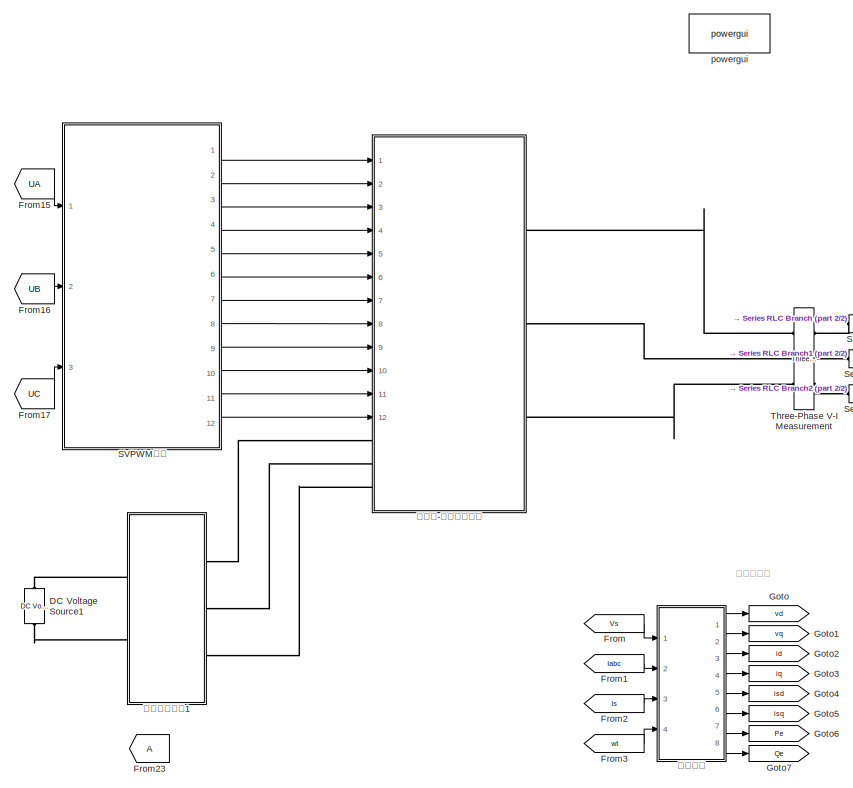
[diagram: root canvas - part 1/2, left side, full height]
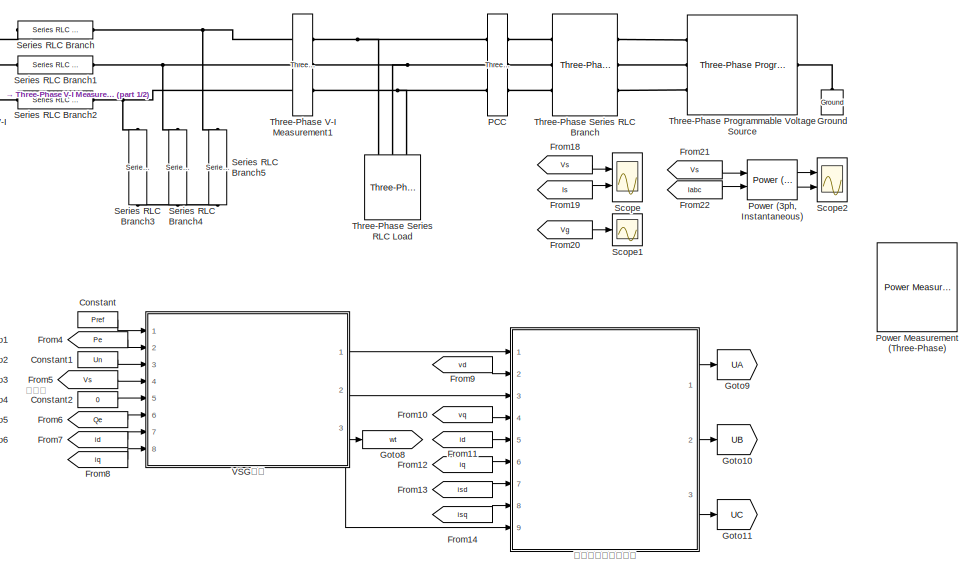
[diagram: root canvas - part 2/2, bottom right region]
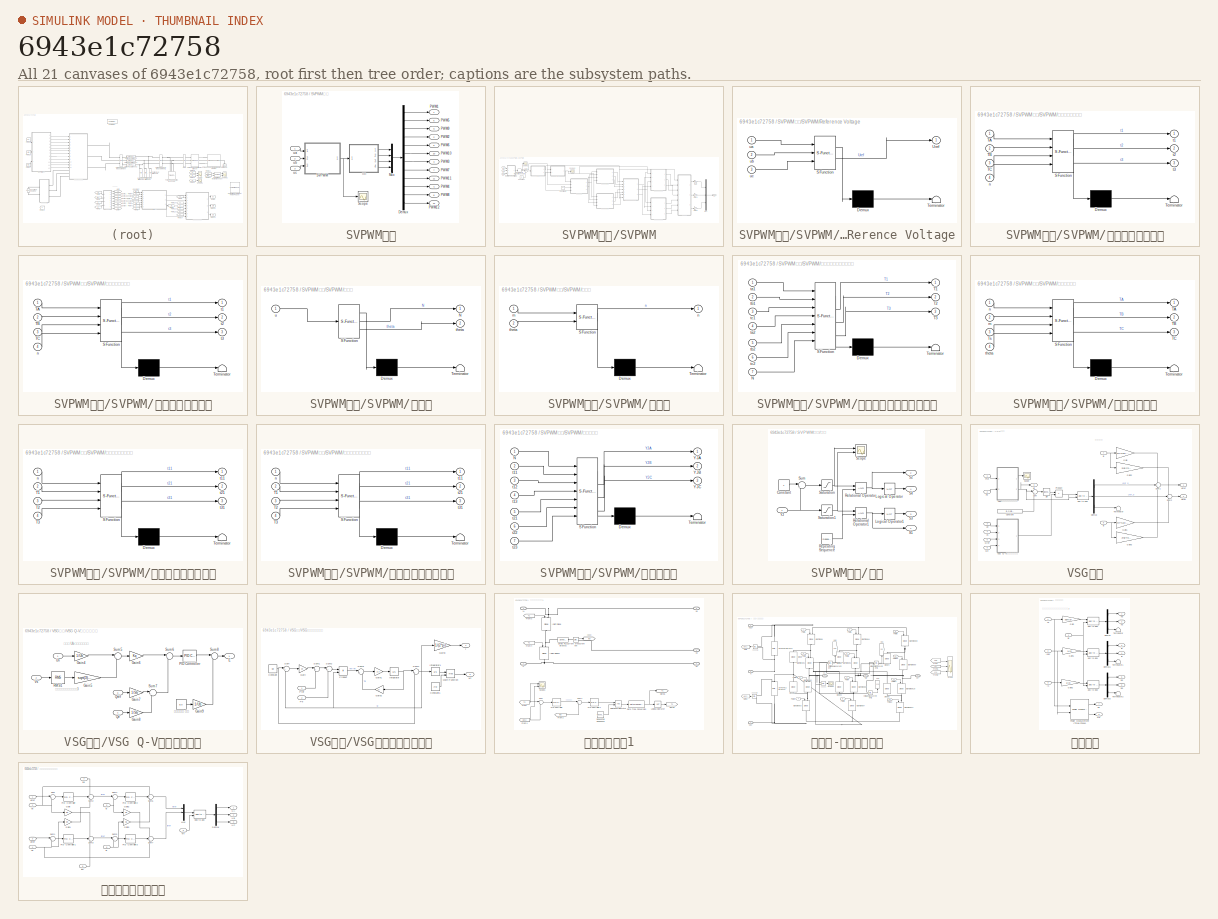
[diagram: thumbnail index - all 21 canvases of the model, root first then tree order]
MODEL slx_6943e1c72758
KIND model
CONFIG AbsTol = auto
CONFIG EnableMultiTasking = off
CONFIG FixedStep = auto
CONFIG MaxStep = auto
CONFIG MinStep = auto
CONFIG RelTol = 1e-3
CONFIG SampleTimeConstraint = Unconstrained
CONFIG SolverName = ode23t
CONFIG StartTime = 0.0
CONFIG StopTime = 3
BLOCK [Constant] Constant
  Value = Pref
BLOCK [Constant] Constant1
  Value = Un
BLOCK [Constant] Constant2
  Value = 0
BLOCK [Reference] DC Voltage Source1  REF=spsDCVoltageSourceLib/DC Voltage Source
  Ports = [0, 0, 0, 0, 0, 1, 1]
  SourceBlock = spsDCVoltageSourceLib/DC Voltage Source
  SourceProductBaseCode = PS
  SourceType = DC Voltage Source
BLOCK [From] From
  GotoTag = Vs
  TagVisibility = global
BLOCK [From] From1
  GotoTag = Iabc
  TagVisibility = global
BLOCK [From] From10
  GotoTag = vq
BLOCK [From] From11
  GotoTag = id
BLOCK [From] From12
  GotoTag = iq
BLOCK [From] From13
  GotoTag = isd
BLOCK [From] From14
  GotoTag = isq
BLOCK [From] From15
  GotoTag = UA
BLOCK [From] From16
  GotoTag = UB
BLOCK [From] From17
  GotoTag = UC
BLOCK [From] From18
  GotoTag = Vs
  TagVisibility = global
BLOCK [From] From19
  GotoTag = Is
  TagVisibility = global
BLOCK [From] From2
  GotoTag = Is
  TagVisibility = global
BLOCK [From] From20
  GotoTag = Vg
  TagVisibility = global
BLOCK [From] From21
  GotoTag = Vs
  TagVisibility = global
BLOCK [From] From22
  GotoTag = Iabc
  TagVisibility = global
BLOCK [From] From23
BLOCK [From] From3
  GotoTag = wt
BLOCK [From] From4
  GotoTag = Pe
BLOCK [From] From5
  GotoTag = Vs
  TagVisibility = global
BLOCK [From] From6
  GotoTag = Qe
BLOCK [From] From7
  GotoTag = id
BLOCK [From] From8
  GotoTag = iq
BLOCK [From] From9
  GotoTag = vd
BLOCK [Goto] Goto
  GotoTag = vd
BLOCK [Goto] Goto1
  GotoTag = vq
BLOCK [Goto] Goto10
  GotoTag = UB
BLOCK [Goto] Goto11
  GotoTag = UC
BLOCK [Goto] Goto2
  GotoTag = id
BLOCK [Goto] Goto3
  GotoTag = iq
BLOCK [Goto] Goto4
  GotoTag = isd
BLOCK [Goto] Goto5
  GotoTag = isq
BLOCK [Goto] Goto6
  GotoTag = Pe
BLOCK [Goto] Goto7
  GotoTag = Qe
BLOCK [Goto] Goto8
  GotoTag = wt
BLOCK [Goto] Goto9
  GotoTag = UA
BLOCK [Reference] Ground  REF=spsGroundLib/Ground
  NameLocation = right
  Ports = [0, 0, 0, 0, 0, 1]
  SourceBlock = spsGroundLib/Ground
  SourceProductBaseCode = PS
  SourceType = Ground
BLOCK [Reference] PCC  REF=spsThreePhaseVIMeasurementLib/Three-Phase
V-I Measurement
  Ports = [0, 0, 0, 0, 0, 3, 3]
  SourceBlock = spsThreePhaseVIMeasurementLib/Three-Phase\nV-I Measurement
  SourceProductBaseCode = PS
  SourceType = Three-Phase VI Measurement
BLOCK [Reference] Power (3ph, Instantaneous)  REF=spsPower3phInstantaneousLib/Power
(3ph, Instantaneous)
  Ports = [2, 2]
  SourceBlock = spsPower3phInstantaneousLib/Power\n(3ph, Instantaneous)
  SourceProductBaseCode = PS
  SourceType = Power (3ph, Instantaneous)
BLOCK [Reference] Power Measurement (Three-Phase)  REF=eePowerMeasurement/Power Measurement
(Three-Phase)
  Ports = [2, 2]
  SourceBlock = eePowerMeasurement/Power Measurement\n(Three-Phase)
  SourceProductBaseCode = PS
  SourceType = Power Measurement (Three-Phase)
BLOCK [SubSystem] SVPWM调制
  Ports = [3, 12]
  RequestExecContextInheritance = off
BLOCK [Demux] SVPWM调制/Demux
  Outputs = 12
  Ports = [1, 12]
BLOCK [Mux] SVPWM调制/Mux
  DisplayOption = bar
  Ports = [4, 1]
BLOCK [Outport] SVPWM调制/PWM1
BLOCK [Outport] SVPWM调制/PWM10
  Port = 10
BLOCK [Outport] SVPWM调制/PWM11
  Port = 11
BLOCK [Outport] SVPWM调制/PWM12
  Port = 12
BLOCK [Outport] SVPWM调制/PWM2
  Port = 2
BLOCK [Outport] SVPWM调制/PWM3
  Port = 3
BLOCK [Outport] SVPWM调制/PWM4
  Port = 4
BLOCK [Outport] SVPWM调制/PWM5
  Port = 5
BLOCK [Outport] SVPWM调制/PWM6
  Port = 6
BLOCK [Outport] SVPWM调制/PWM7
  Port = 7
BLOCK [Outport] SVPWM调制/PWM8
  Port = 8
BLOCK [Outport] SVPWM调制/PWM9
  Port = 9
BLOCK [SubSystem] SVPWM调制/SVPWM
  Ports = [3, 1]
  RequestExecContextInheritance = off
BLOCK [ComplexToMagnitudeAngle] SVPWM调制/SVPWM/Complex to Magnitude-Angle
  Ports = [1, 2]
BLOCK [Constant] SVPWM调制/SVPWM/Constant
  Value = pi
BLOCK [Constant] SVPWM调制/SVPWM/Constant1
  Value = Ts
BLOCK [Gain] SVPWM调制/SVPWM/Gain
  Gain = 1/Ts
BLOCK [Gain] SVPWM调制/SVPWM/Gain1
  Gain = 1/Ts
BLOCK [Gain] SVPWM调制/SVPWM/Gain2
  Gain = 1/Ts
BLOCK [Mux] SVPWM调制/SVPWM/Mux
  DisplayOption = bar
  Inputs = 3
  Ports = [3, 1]
BLOCK [SubSystem] SVPWM调制/SVPWM/Reference Voltage
  ErrorFcn = Stateflow.Translate.translate
  PermitHierarchicalResolution = ExplicitOnly
  Ports = [3, 1]
  RequestExecContextInheritance = off
  SFBlockType = MATLAB Function
  TreatAsAtomicUnit = on
BLOCK [Demux] SVPWM调制/SVPWM/Reference Voltage/ Demux 
  Outputs = 1
  Ports = [1, 1]
BLOCK [S-Function] SVPWM调制/SVPWM/Reference Voltage/ SFunction 
  EnableBusSupport = on
  FunctionName = sf_sfun
  PortCounts = [3 2]
  Ports = [3, 2]
  SFcnIsStateOwnerBlock = off
  SFunctionDeploymentMode = off
  Tag = Stateflow S-Function 2
BLOCK [Terminator] SVPWM调制/SVPWM/Reference Voltage/ Terminator 
BLOCK [Outport] SVPWM调制/SVPWM/Reference Voltage/Uref
BLOCK [Inport] SVPWM调制/SVPWM/Reference Voltage/ua
BLOCK [Inport] SVPWM调制/SVPWM/Reference Voltage/ub
  Port = 2
BLOCK [Inport] SVPWM调制/SVPWM/Reference Voltage/uc
  Port = 3
BLOCK [Scope] SVPWM调制/SVPWM/Scope2
  Floating = off
  NumInputPorts = 1
  Ports = [1]
  ScopeSpecificationString = Simulink.scopes.TimeScopeBlockCfg('CurrentConfiguration', extmgr.ConfigurationSet(extmgr.Configuration('Core','General UI',true),extmgr.Configuration('Core','Source UI',true),extmgr.Configuration('Sources','WiredSimulink',true,'DataLoggingVariableName','ScopeData2'),extmgr.Configuration('Visuals','Time Domain',true,'SerializedDisplays',{struct('MinYLimReal','-3.61601','MaxYLimReal','3.90932','YLab...<+1433ch>
BLOCK [Scope] SVPWM调制/SVPWM/Scope3
  Floating = off
  NumInputPorts = 1
  Ports = [1]
  ScopeSpecificationString = Simulink.scopes.TimeScopeBlockCfg('CurrentConfiguration', extmgr.ConfigurationSet(extmgr.Configuration('Core','General UI',true),extmgr.Configuration('Core','Source UI',true),extmgr.Configuration('Sources','WiredSimulink',true,'DataLoggingVariableName','ScopeData1'),extmgr.Configuration('Visuals','Time Domain',true,'SerializedDisplays',{struct('MinYLimReal','2.625','MaxYLimReal','6.375','YLabelRea...<+1390ch>
BLOCK [Sum] SVPWM调制/SVPWM/Sum
  Inputs = |++
  Ports = [2, 1]
BLOCK [Outport] SVPWM调制/SVPWM/YJ
BLOCK [Inport] SVPWM调制/SVPWM/ua
BLOCK [Inport] SVPWM调制/SVPWM/ub
  Port = 2
BLOCK [Inport] SVPWM调制/SVPWM/uc
  Port = 3
BLOCK [SubSystem] SVPWM调制/SVPWM/上半周期时间分配
  ErrorFcn = Stateflow.Translate.translate
  PermitHierarchicalResolution = ExplicitOnly
  Ports = [4, 3]
  RequestExecContextInheritance = off
  SFBlockType = MATLAB Function
  TreatAsAtomicUnit = on
BLOCK [Demux] SVPWM调制/SVPWM/上半周期时间分配/ Demux 
  Outputs = 1
  Ports = [1, 1]
BLOCK [S-Function] SVPWM调制/SVPWM/上半周期时间分配/ SFunction 
  EnableBusSupport = on
  FunctionName = sf_sfun
  PortCounts = [4 4]
  Ports = [4, 4]
  SFcnIsStateOwnerBlock = off
  SFunctionDeploymentMode = off
  Tag = Stateflow S-Function 5
BLOCK [Terminator] SVPWM调制/SVPWM/上半周期时间分配/ Terminator 
BLOCK [Inport] SVPWM调制/SVPWM/上半周期时间分配/TA
BLOCK [Inport] SVPWM调制/SVPWM/上半周期时间分配/TB
  Port = 2
BLOCK [Inport] SVPWM调制/SVPWM/上半周期时间分配/TC
  Port = 3
BLOCK [Inport] SVPWM调制/SVPWM/上半周期时间分配/n
  Port = 4
BLOCK [Outport] SVPWM调制/SVPWM/上半周期时间分配/t1
BLOCK [Outport] SVPWM调制/SVPWM/上半周期时间分配/t2
  Port = 2
BLOCK [Outport] SVPWM调制/SVPWM/上半周期时间分配/t3
  Port = 3
BLOCK [SubSystem] SVPWM调制/SVPWM/下半周期时间分配
  ErrorFcn = Stateflow.Translate.translate
  PermitHierarchicalResolution = ExplicitOnly
  Ports = [4, 3]
  RequestExecContextInheritance = off
  SFBlockType = MATLAB Function
  TreatAsAtomicUnit = on
BLOCK [Demux] SVPWM调制/SVPWM/下半周期时间分配/ Demux 
  Outputs = 1
  Ports = [1, 1]
BLOCK [S-Function] SVPWM调制/SVPWM/下半周期时间分配/ SFunction 
  EnableBusSupport = on
  FunctionName = sf_sfun
  PortCounts = [4 4]
  Ports = [4, 4]
  SFcnIsStateOwnerBlock = off
  SFunctionDeploymentMode = off
  Tag = Stateflow S-Function 6
BLOCK [Terminator] SVPWM调制/SVPWM/下半周期时间分配/ Terminator 
BLOCK [Inport] SVPWM调制/SVPWM/下半周期时间分配/TA
BLOCK [Inport] SVPWM调制/SVPWM/下半周期时间分配/TB
  Port = 2
BLOCK [Inport] SVPWM调制/SVPWM/下半周期时间分配/TC
  Port = 3
BLOCK [Inport] SVPWM调制/SVPWM/下半周期时间分配/n
  Port = 4
BLOCK [Outport] SVPWM调制/SVPWM/下半周期时间分配/t1
BLOCK [Outport] SVPWM调制/SVPWM/下半周期时间分配/t2
  Port = 2
BLOCK [Outport] SVPWM调制/SVPWM/下半周期时间分配/t3
  Port = 3
BLOCK [SubSystem] SVPWM调制/SVPWM/大扇区
  ErrorFcn = Stateflow.Translate.translate
  PermitHierarchicalResolution = ExplicitOnly
  Ports = [1, 2]
  RequestExecContextInheritance = off
  SFBlockType = MATLAB Function
  TreatAsAtomicUnit = on
BLOCK [Demux] SVPWM调制/SVPWM/大扇区/ Demux 
  Outputs = 1
  Ports = [1, 1]
BLOCK [S-Function] SVPWM调制/SVPWM/大扇区/ SFunction 
  EnableBusSupport = on
  FunctionName = sf_sfun
  PortCounts = [1 3]
  Ports = [1, 3]
  SFcnIsStateOwnerBlock = off
  SFunctionDeploymentMode = off
  Tag = Stateflow S-Function 1
BLOCK [Terminator] SVPWM调制/SVPWM/大扇区/ Terminator 
BLOCK [Outport] SVPWM调制/SVPWM/大扇区/N
BLOCK [Outport] SVPWM调制/SVPWM/大扇区/theta
  Port = 2
BLOCK [Inport] SVPWM调制/SVPWM/大扇区/u
BLOCK [SubSystem] SVPWM调制/SVPWM/小扇区
  ErrorFcn = Stateflow.Translate.translate
  PermitHierarchicalResolution = ExplicitOnly
  Ports = [2, 1]
  RequestExecContextInheritance = off
  SFBlockType = MATLAB Function
  TreatAsAtomicUnit = on
BLOCK [Demux] SVPWM调制/SVPWM/小扇区/ Demux 
  Outputs = 1
  Ports = [1, 1]
BLOCK [S-Function] SVPWM调制/SVPWM/小扇区/ SFunction 
  EnableBusSupport = on
  FunctionName = sf_sfun
  PortCounts = [2 2]
  Ports = [2, 2]
  SFcnIsStateOwnerBlock = off
  SFunctionDeploymentMode = off
  Tag = Stateflow S-Function 3
BLOCK [Terminator] SVPWM调制/SVPWM/小扇区/ Terminator 
BLOCK [Inport] SVPWM调制/SVPWM/小扇区/m
BLOCK [Outport] SVPWM调制/SVPWM/小扇区/n
BLOCK [Inport] SVPWM调制/SVPWM/小扇区/theta
  Port = 2
BLOCK [SubSystem] SVPWM调制/SVPWM/按规律选择实际时间分配
  ErrorFcn = Stateflow.Translate.translate
  PermitHierarchicalResolution = ExplicitOnly
  Ports = [7, 3]
  RequestExecContextInheritance = off
  SFBlockType = MATLAB Function
  TreatAsAtomicUnit = on
BLOCK [Demux] SVPWM调制/SVPWM/按规律选择实际时间分配/ Demux 
  Outputs = 1
  Ports = [1, 1]
BLOCK [S-Function] SVPWM调制/SVPWM/按规律选择实际时间分配/ SFunction 
  EnableBusSupport = on
  FunctionName = sf_sfun
  PortCounts = [7 4]
  Ports = [7, 4]
  SFcnIsStateOwnerBlock = off
  SFunctionDeploymentMode = off
  Tag = Stateflow S-Function 7
BLOCK [Terminator] SVPWM调制/SVPWM/按规律选择实际时间分配/ Terminator 
BLOCK [Inport] SVPWM调制/SVPWM/按规律选择实际时间分配/N
  Port = 7
BLOCK [Outport] SVPWM调制/SVPWM/按规律选择实际时间分配/T1
BLOCK [Outport] SVPWM调制/SVPWM/按规律选择实际时间分配/T2
  Port = 2
BLOCK [Outport] SVPWM调制/SVPWM/按规律选择实际时间分配/T3
  Port = 3
BLOCK [Inport] SVPWM调制/SVPWM/按规律选择实际时间分配/ta1
BLOCK [Inport] SVPWM调制/SVPWM/按规律选择实际时间分配/ta2
  Port = 4
BLOCK [Inport] SVPWM调制/SVPWM/按规律选择实际时间分配/tb1
  Port = 2
BLOCK [Inport] SVPWM调制/SVPWM/按规律选择实际时间分配/tb2
  Port = 5
BLOCK [Inport] SVPWM调制/SVPWM/按规律选择实际时间分配/tc1
  Port = 3
BLOCK [Inport] SVPWM调制/SVPWM/按规律选择实际时间分配/tc2
  Port = 6
BLOCK [SubSystem] SVPWM调制/SVPWM/矢量作用时间
  ErrorFcn = Stateflow.Translate.translate
  PermitHierarchicalResolution = ExplicitOnly
  Ports = [4, 3]
  RequestExecContextInheritance = off
  SFBlockType = MATLAB Function
  TreatAsAtomicUnit = on
BLOCK [Demux] SVPWM调制/SVPWM/矢量作用时间/ Demux 
  Outputs = 1
  Ports = [1, 1]
BLOCK [S-Function] SVPWM调制/SVPWM/矢量作用时间/ SFunction 
  EnableBusSupport = on
  FunctionName = sf_sfun
  PortCounts = [4 4]
  Ports = [4, 4]
  SFcnIsStateOwnerBlock = off
  SFunctionDeploymentMode = off
  Tag = Stateflow S-Function 4
BLOCK [Terminator] SVPWM调制/SVPWM/矢量作用时间/ Terminator 
BLOCK [Outport] SVPWM调制/SVPWM/矢量作用时间/TA
BLOCK [Outport] SVPWM调制/SVPWM/矢量作用时间/TB
  Port = 2
BLOCK [Outport] SVPWM调制/SVPWM/矢量作用时间/TC
  Port = 3
BLOCK [Inport] SVPWM调制/SVPWM/矢量作用时间/Ts
  Port = 3
BLOCK [Inport] SVPWM调制/SVPWM/矢量作用时间/m
  Port = 2
BLOCK [Inport] SVPWM调制/SVPWM/矢量作用时间/n
BLOCK [Inport] SVPWM调制/SVPWM/矢量作用时间/theta
  Port = 4
BLOCK [SubSystem] SVPWM调制/SVPWM/第一大扇区羊角分配
  ErrorFcn = Stateflow.Translate.translate
  PermitHierarchicalResolution = ExplicitOnly
  Ports = [4, 3]
  RequestExecContextInheritance = off
  SFBlockType = MATLAB Function
  TreatAsAtomicUnit = on
BLOCK [Demux] SVPWM调制/SVPWM/第一大扇区羊角分配/ Demux 
  Outputs = 1
  Ports = [1, 1]
BLOCK [S-Function] SVPWM调制/SVPWM/第一大扇区羊角分配/ SFunction 
  EnableBusSupport = on
  FunctionName = sf_sfun
  PortCounts = [4 4]
  Ports = [4, 4]
  SFcnIsStateOwnerBlock = off
  SFunctionDeploymentMode = off
  Tag = Stateflow S-Function 8
BLOCK [Terminator] SVPWM调制/SVPWM/第一大扇区羊角分配/ Terminator 
BLOCK [Inport] SVPWM调制/SVPWM/第一大扇区羊角分配/T1
  Port = 2
BLOCK [Inport] SVPWM调制/SVPWM/第一大扇区羊角分配/T2
  Port = 3
BLOCK [Inport] SVPWM调制/SVPWM/第一大扇区羊角分配/T3
  Port = 4
BLOCK [Inport] SVPWM调制/SVPWM/第一大扇区羊角分配/n
BLOCK [Outport] SVPWM调制/SVPWM/第一大扇区羊角分配/t11
BLOCK [Outport] SVPWM调制/SVPWM/第一大扇区羊角分配/t21
  Port = 2
BLOCK [Outport] SVPWM调制/SVPWM/第一大扇区羊角分配/t31
  Port = 3
BLOCK [SubSystem] SVPWM调制/SVPWM/第二大扇区羊角分配
  ErrorFcn = Stateflow.Translate.translate
  PermitHierarchicalResolution = ExplicitOnly
  Ports = [4, 3]
  RequestExecContextInheritance = off
  SFBlockType = MATLAB Function
  TreatAsAtomicUnit = on
BLOCK [Demux] SVPWM调制/SVPWM/第二大扇区羊角分配/ Demux 
  Outputs = 1
  Ports = [1, 1]
BLOCK [S-Function] SVPWM调制/SVPWM/第二大扇区羊角分配/ SFunction 
  EnableBusSupport = on
  FunctionName = sf_sfun
  PortCounts = [4 4]
  Ports = [4, 4]
  SFcnIsStateOwnerBlock = off
  SFunctionDeploymentMode = off
  Tag = Stateflow S-Function 9
BLOCK [Terminator] SVPWM调制/SVPWM/第二大扇区羊角分配/ Terminator 
BLOCK [Inport] SVPWM调制/SVPWM/第二大扇区羊角分配/T1
  Port = 2
BLOCK [Inport] SVPWM调制/SVPWM/第二大扇区羊角分配/T2
  Port = 3
BLOCK [Inport] SVPWM调制/SVPWM/第二大扇区羊角分配/T3
  Port = 4
BLOCK [Inport] SVPWM调制/SVPWM/第二大扇区羊角分配/n
BLOCK [Outport] SVPWM调制/SVPWM/第二大扇区羊角分配/t11
BLOCK [Outport] SVPWM调制/SVPWM/第二大扇区羊角分配/t21
  Port = 2
BLOCK [Outport] SVPWM调制/SVPWM/第二大扇区羊角分配/t31
  Port = 3
BLOCK [SubSystem] SVPWM调制/SVPWM/羊角波生成
  ErrorFcn = Stateflow.Translate.translate
  PermitHierarchicalResolution = ExplicitOnly
  Ports = [7, 3]
  RequestExecContextInheritance = off
  SFBlockType = MATLAB Function
  TreatAsAtomicUnit = on
BLOCK [Demux] SVPWM调制/SVPWM/羊角波生成/ Demux 
  Outputs = 1
  Ports = [1, 1]
BLOCK [S-Function] SVPWM调制/SVPWM/羊角波生成/ SFunction 
  EnableBusSupport = on
  FunctionName = sf_sfun
  PortCounts = [7 4]
  Ports = [7, 4]
  SFcnIsStateOwnerBlock = off
  SFunctionDeploymentMode = off
  Tag = Stateflow S-Function 10
BLOCK [Terminator] SVPWM调制/SVPWM/羊角波生成/ Terminator 
BLOCK [Inport] SVPWM调制/SVPWM/羊角波生成/N
BLOCK [Outport] SVPWM调制/SVPWM/羊角波生成/YJA
BLOCK [Outport] SVPWM调制/SVPWM/羊角波生成/YJB
  Port = 2
BLOCK [Outport] SVPWM调制/SVPWM/羊角波生成/YJC
  Port = 3
BLOCK [Inport] SVPWM调制/SVPWM/羊角波生成/t11
  Port = 2
BLOCK [Inport] SVPWM调制/SVPWM/羊角波生成/t12
  Port = 3
BLOCK [Inport] SVPWM调制/SVPWM/羊角波生成/t13
  Port = 4
BLOCK [Inport] SVPWM调制/SVPWM/羊角波生成/t21
  Port = 5
BLOCK [Inport] SVPWM调制/SVPWM/羊角波生成/t22
  Port = 6
BLOCK [Inport] SVPWM调制/SVPWM/羊角波生成/t23
  Port = 7
BLOCK [Scope] SVPWM调制/Scope
  Floating = off
  NumInputPorts = 1
  Ports = [1]
  ScopeSpecificationString = Simulink.scopes.TimeScopeBlockCfg('CurrentConfiguration', extmgr.ConfigurationSet(extmgr.Configuration('Core','General UI',true),extmgr.Configuration('Core','Source UI',true),extmgr.Configuration('Sources','WiredSimulink',true,'DataLoggingVariableName','ScopeData1'),extmgr.Configuration('Visuals','Time Domain',true,'SerializedDisplays',{struct('MinYLimReal','-1.095','MaxYLimReal','1.01123','YLabel...<+1423ch>
BLOCK [Inport] SVPWM调制/ua
BLOCK [Inport] SVPWM调制/ub
  Port = 2
BLOCK [Inport] SVPWM调制/uc
  Port = 3
BLOCK [SubSystem] SVPWM调制/调制
  Ports = [1, 4]
  RequestExecContextInheritance = off
BLOCK [Constant] SVPWM调制/调制/Constant
BLOCK [Logic] SVPWM调制/调制/Logical Operator
  AllPortsSameDT = off
  Operator = NOT
  OutDataTypeStr = boolean
  Ports = [1, 1]
BLOCK [Logic] SVPWM调制/调制/Logical Operator1
  AllPortsSameDT = off
  Operator = NOT
  OutDataTypeStr = boolean
  Ports = [1, 1]
BLOCK [RelationalOperator] SVPWM调制/调制/Relational Operator
  InputSameDT = off
  OutDataTypeStr = boolean
  Ports = [2, 1]
  RndMeth = Simplest
BLOCK [RelationalOperator] SVPWM调制/调制/Relational Operator1
  InputSameDT = off
  OutDataTypeStr = boolean
  Ports = [2, 1]
  RndMeth = Simplest
BLOCK [Reference] SVPWM调制/调制/Repeating Sequence  REF=simulink/Sources/Repeating
Sequence
  Ports = [0, 1]
  SourceBlock = simulink/Sources/Repeating\nSequence
  SourceProductBaseCode = SL
  SourceType = Repeating table
BLOCK [Outport] SVPWM调制/调制/S1
BLOCK [Outport] SVPWM调制/调制/S2
  Port = 2
BLOCK [Outport] SVPWM调制/调制/S3
  Port = 3
BLOCK [Outport] SVPWM调制/调制/S4
  Port = 4
BLOCK [Saturate] SVPWM调制/调制/Saturation
  LowerLimit = 0
  UpperLimit = 1
BLOCK [Saturate] SVPWM调制/调制/Saturation1
  LowerLimit = 0
  UpperLimit = 1
BLOCK [Scope] SVPWM调制/调制/Scope
  Floating = off
  NumInputPorts = 2
  Ports = [2]
  ScopeSpecificationString = Simulink.scopes.TimeScopeBlockCfg('CurrentConfiguration', extmgr.ConfigurationSet(extmgr.Configuration('Core','General UI',true),extmgr.Configuration('Core','Source UI',true),extmgr.Configuration('Sources','WiredSimulink',true,'DataLoggingVariableName','ScopeData1'),extmgr.Configuration('Visuals','Time Domain',true,'SerializedDisplays',{struct('MinYLimReal','0.08877','MaxYLimReal','1.04922','YLabe...<+2097ch>
BLOCK [Sum] SVPWM调制/调制/Sum
  Inputs = |++
  Ports = [2, 1]
BLOCK [Inport] SVPWM调制/调制/YJ
BLOCK [Scope] Scope
  Floating = off
  NumInputPorts = 2
  Ports = [2]
  ScopeSpecificationString = Simulink.scopes.TimeScopeBlockCfg('CurrentConfiguration', extmgr.ConfigurationSet(extmgr.Configuration('Core','General UI',true),extmgr.Configuration('Core','Source UI',true),extmgr.Configuration('Sources','WiredSimulink',true,'DataLoggingVariableName','ScopeData2'),extmgr.Configuration('Visuals','Time Domain',true,'SerializedDisplays',{struct('MinYLimReal','-399.34578','MaxYLimReal','409.68454','...<+2076ch>
BLOCK [Scope] Scope1
  Floating = off
  NumInputPorts = 1
  Ports = [1]
  ScopeSpecificationString = Simulink.scopes.TimeScopeBlockCfg('CurrentConfiguration', extmgr.ConfigurationSet(extmgr.Configuration('Core','General UI',true),extmgr.Configuration('Core','Source UI',true),extmgr.Configuration('Sources','WiredSimulink',true,'DataLoggingVariableName','ScopeData3'),extmgr.Configuration('Visuals','Time Domain',true),extmgr.Configuration('Tools','Plot Navigation',true),extmgr.Configuration('Tools',...<+40ch>
BLOCK [Scope] Scope2
  Floating = off
  NumInputPorts = 2
  Ports = [2]
  ScopeSpecificationString = Simulink.scopes.TimeScopeBlockCfg('CurrentConfiguration', extmgr.ConfigurationSet(extmgr.Configuration('Core','General UI',true),extmgr.Configuration('Core','Source UI',true),extmgr.Configuration('Sources','WiredSimulink',true,'DataLoggingVariableName','ScopeData4'),extmgr.Configuration('Visuals','Time Domain',true,'SerializedDisplays',{struct('MinYLimReal','-52727.15855','MaxYLimReal','295385.841...<+2092ch>
BLOCK [Reference] Series RLC Branch  REF=spsSeriesRLCBranchLib/Series RLC Branch
  Ports = [0, 0, 0, 0, 0, 1, 1]
  SourceBlock = spsSeriesRLCBranchLib/Series RLC Branch
  SourceProductBaseCode = PS
  SourceType = Series RLC Branch
BLOCK [Reference] Series RLC Branch1  REF=spsSeriesRLCBranchLib/Series RLC Branch
  Ports = [0, 0, 0, 0, 0, 1, 1]
  SourceBlock = spsSeriesRLCBranchLib/Series RLC Branch
  SourceProductBaseCode = PS
  SourceType = Series RLC Branch
BLOCK [Reference] Series RLC Branch2  REF=spsSeriesRLCBranchLib/Series RLC Branch
  Ports = [0, 0, 0, 0, 0, 1, 1]
  SourceBlock = spsSeriesRLCBranchLib/Series RLC Branch
  SourceProductBaseCode = PS
  SourceType = Series RLC Branch
BLOCK [Reference] Series RLC Branch3  REF=spsSeriesRLCBranchLib/Series RLC Branch
  NameLocation = left
  Ports = [0, 0, 0, 0, 0, 1, 1]
  SourceBlock = spsSeriesRLCBranchLib/Series RLC Branch
  SourceProductBaseCode = PS
  SourceType = Series RLC Branch
BLOCK [Reference] Series RLC Branch4  REF=spsSeriesRLCBranchLib/Series RLC Branch
  NameLocation = left
  Ports = [0, 0, 0, 0, 0, 1, 1]
  SourceBlock = spsSeriesRLCBranchLib/Series RLC Branch
  SourceProductBaseCode = PS
  SourceType = Series RLC Branch
BLOCK [Reference] Series RLC Branch5  REF=spsSeriesRLCBranchLib/Series RLC Branch
  NameLocation = left
  Ports = [0, 0, 0, 0, 0, 1, 1]
  SourceBlock = spsSeriesRLCBranchLib/Series RLC Branch
  SourceProductBaseCode = PS
  SourceType = Series RLC Branch
BLOCK [Reference] Three-Phase Programmable Voltage Source  REF=spsThreePhaseProgrammableVoltageSourceLib/Three-Phase
Programmable
Voltage Source
  Ports = [0, 0, 0, 0, 0, 1, 3]
  SourceBlock = spsThreePhaseProgrammableVoltageSourceLib/Three-Phase\nProgrammable\nVoltage Source
  SourceProductBaseCode = PS
  SourceType = Three-Phase Programmable Voltage Source
BLOCK [Reference] Three-Phase Series RLC Branch  REF=spsThreePhaseSeriesRLCBranchLib/Three-Phase
Series RLC Branch
  AttributesFormatString = \n
  Ports = [0, 0, 0, 0, 0, 3, 3]
  SourceBlock = spsThreePhaseSeriesRLCBranchLib/Three-Phase\nSeries RLC Branch
  SourceProductBaseCode = PS
  SourceType = Three-Phase Series RLC Branch
BLOCK [Reference] Three-Phase Series RLC Load  REF=spsThreePhaseSeriesRLCLoadLib/Three-Phase
Series RLC Load
  AttributesFormatString = \n
  Ports = [0, 0, 0, 0, 0, 3]
  SourceBlock = spsThreePhaseSeriesRLCLoadLib/Three-Phase\nSeries RLC Load
  SourceProductBaseCode = PS
  SourceType = Three-Phase Series RLC Load
BLOCK [Reference] Three-Phase V-I Measurement  REF=spsThreePhaseVIMeasurementLib/Three-Phase
V-I Measurement
  Ports = [0, 0, 0, 0, 0, 3, 3]
  SourceBlock = spsThreePhaseVIMeasurementLib/Three-Phase\nV-I Measurement
  SourceProductBaseCode = PS
  SourceType = Three-Phase VI Measurement
BLOCK [Reference] Three-Phase V-I Measurement1  REF=spsThreePhaseVIMeasurementLib/Three-Phase
V-I Measurement
  Ports = [0, 0, 0, 0, 0, 3, 3]
  SourceBlock = spsThreePhaseVIMeasurementLib/Three-Phase\nV-I Measurement
  SourceProductBaseCode = PS
  SourceType = Three-Phase VI Measurement
BLOCK [SubSystem] VSG控制
  Ports = [8, 3]
  RequestExecContextInheritance = off
BLOCK [Constant] VSG控制/Constant
  Value = [0 -2*pi/3 -4*pi/3]
BLOCK [Demux] VSG控制/Demux
  Outputs = 3
  Ports = [1, 3]
BLOCK [Gain] VSG控制/Gain
  Gain = Rf*Sb/(Ub^2)
BLOCK [Gain] VSG控制/Gain1
  Gain = Rf*Sb/(Ub^2)
BLOCK [Gain] VSG控制/Gain2
  Gain = 2*pi*fn*L*Sb/(Ub^2)
BLOCK [Gain] VSG控制/Gain3
  Gain = 2*pi*fn*L*Sb/(Ub^2)
BLOCK [Inport] VSG控制/Pe
  Port = 2
BLOCK [Inport] VSG控制/Pref
BLOCK [Product] VSG控制/Product
  Ports = [2, 1]
BLOCK [Inport] VSG控制/Qe
  Port = 6
BLOCK [Inport] VSG控制/Qref
  Port = 5
BLOCK [Scope] VSG控制/Scope
  Floating = off
  NumInputPorts = 1
  Ports = [1]
  ScopeSpecificationString = Simulink.scopes.TimeScopeBlockCfg('CurrentConfiguration', extmgr.ConfigurationSet(extmgr.Configuration('Core','General UI',true),extmgr.Configuration('Core','Source UI',true),extmgr.Configuration('Sources','WiredSimulink',true,'DataLoggingVariableName','ScopeData2'),extmgr.Configuration('Visuals','Time Domain',true),extmgr.Configuration('Tools','Plot Navigation',true),extmgr.Configuration('Tools',...<+40ch>
BLOCK [Trigonometry] VSG控制/Sin
  Ports = [1, 1]
BLOCK [Sum] VSG控制/Sum
  Inputs = |++
  Ports = [2, 1]
BLOCK [Sum] VSG控制/Sum1
  Inputs = -++
  Ports = [3, 1]
BLOCK [Sum] VSG控制/Sum2
  Inputs = -+-
  Ports = [3, 1]
BLOCK [Terminator] VSG控制/Terminator
BLOCK [Inport] VSG控制/Un
  Port = 3
BLOCK [SubSystem] VSG控制/VSG Q-V控制一次调压
  Ports = [4, 1]
  RequestExecContextInheritance = off
BLOCK [Outport] VSG控制/VSG Q-V控制一次调压/E
BLOCK [Gain] VSG控制/VSG Q-V控制一次调压/Gain4
  Gain = 1/Ub
BLOCK [Gain] VSG控制/VSG Q-V控制一次调压/Gain5
  Gain = sqrt(3)/Ub
BLOCK [Gain] VSG控制/VSG Q-V控制一次调压/Gain6
  Gain = Kq
BLOCK [Gain] VSG控制/VSG Q-V控制一次调压/Gain7
  Gain = 1/Sb
BLOCK [Gain] VSG控制/VSG Q-V控制一次调压/Gain8
  Gain = 1/Sb
BLOCK [Gain] VSG控制/VSG Q-V控制一次调压/Gain9
  Gain = 1/Ub
BLOCK [Reference] VSG控制/VSG Q-V控制一次调压/PID Controller  REF=slpidlib/PID Controller
  Ports = [1, 1]
  SourceBlock = slpidlib/PID Controller
  SourceProductBaseCode = SL
  SourceType = PID 1dof
BLOCK [Inport] VSG控制/VSG Q-V控制一次调压/Qe
  Port = 4
BLOCK [Inport] VSG控制/VSG Q-V控制一次调压/Qref
  Port = 3
BLOCK [Reference] VSG控制/VSG Q-V控制一次调压/RMS1  REF=dspstat3/RMS
  Ports = [1, 1]
  SourceBlock = dspstat3/RMS
  SourceProductBaseCode = DS
  SourceType = RMS
  UserDataPersistent = on
BLOCK [Sum] VSG控制/VSG Q-V控制一次调压/Sum5
  Inputs = |+-
  Ports = [2, 1]
BLOCK [Sum] VSG控制/VSG Q-V控制一次调压/Sum6
  Inputs = |++
  Ports = [2, 1]
BLOCK [Sum] VSG控制/VSG Q-V控制一次调压/Sum7
  Inputs = |+-
  Ports = [2, 1]
BLOCK [Sum] VSG控制/VSG Q-V控制一次调压/Sum8
  Inputs = |++
  Ports = [2, 1]
BLOCK [Inport] VSG控制/VSG Q-V控制一次调压/Un
BLOCK [Inport] VSG控制/VSG Q-V控制一次调压/Vs
  Port = 2
BLOCK [Constant] VSG控制/VSG Q-V控制一次调压/空载电动势 峰值
  Value = E0
BLOCK [SubSystem] VSG控制/VSG有功控制一次调频
  Ports = [2, 2]
  RequestExecContextInheritance = off
BLOCK [Constant] VSG控制/VSG有功控制一次调频/Constant
  Value = w0
BLOCK [Constant] VSG控制/VSG有功控制一次调频/Constant1
  Value = 2*pi
BLOCK [Gain] VSG控制/VSG有功控制一次调频/Gain
  Gain = Kf
BLOCK [Gain] VSG控制/VSG有功控制一次调频/Gain1
  Gain = 1/J
BLOCK [Gain] VSG控制/VSG有功控制一次调频/Gain2
  Gain = D
BLOCK [Gain] VSG控制/VSG有功控制一次调频/Gain3
  Gain = 1/(2*pi)
BLOCK [Integrator] VSG控制/VSG有功控制一次调频/Integrator
  Ports = [1, 1]
BLOCK [Integrator] VSG控制/VSG有功控制一次调频/Integrator1
  Ports = [1, 1]
BLOCK [Math] VSG控制/VSG有功控制一次调频/Math Function
  Operator = mod
  Ports = [2, 1]
BLOCK [Inport] VSG控制/VSG有功控制一次调频/Pe
  Port = 2
BLOCK [Inport] VSG控制/VSG有功控制一次调频/Pref
BLOCK [Product] VSG控制/VSG有功控制一次调频/Product
  Inputs = */
  Ports = [2, 1]
BLOCK [Sum] VSG控制/VSG有功控制一次调频/Sum
  Inputs = |+-
  Ports = [2, 1]
BLOCK [Sum] VSG控制/VSG有功控制一次调频/Sum1
  Inputs = |++
  Ports = [2, 1]
BLOCK [Sum] VSG控制/VSG有功控制一次调频/Sum2
  Inputs = |+-
  Ports = [2, 1]
BLOCK [Sum] VSG控制/VSG有功控制一次调频/Sum3
  Inputs = |+-
  Ports = [2, 1]
BLOCK [Sum] VSG控制/VSG有功控制一次调频/Sum4
  Inputs = |++
  Ports = [2, 1]
BLOCK [Outport] VSG控制/VSG有功控制一次调频/f
BLOCK [Outport] VSG控制/VSG有功控制一次调频/wt
  Port = 2
BLOCK [Outport] VSG控制/Vdref
BLOCK [Outport] VSG控制/Vqref
  Port = 2
BLOCK [Inport] VSG控制/Vs
  Port = 4
BLOCK [Reference] VSG控制/abc to dq0  REF=spsabctodq0Lib/abc to dq0
  Ports = [2, 1]
  SourceBlock = spsabctodq0Lib/abc to dq0
  SourceProductBaseCode = PS
  SourceType = abc to dq0 Transformation
BLOCK [Inport] VSG控制/id
  Port = 7
BLOCK [Inport] VSG控制/iq
  Port = 8
BLOCK [Outport] VSG控制/wt
  Port = 3
BLOCK [Reference] powergui  REF=spspowerguiLib/powergui
  Ports = []
  Priority = 1
  SourceBlock = spspowerguiLib/powergui
  SourceProductBaseCode = PS
  SourceType = PSB option menu block
BLOCK [SubSystem] 中点点位平衡1
  Ports = [0, 0, 0, 0, 0, 2, 3]
  RequestExecContextInheritance = off
BLOCK [Reference] 中点点位平衡1/Current Measurement  REF=spsCurrentMeasurementLib/Current Measurement
  Ports = [0, 1, 0, 0, 0, 1, 1]
  SourceBlock = spsCurrentMeasurementLib/Current Measurement
  SourceProductBaseCode = PS
  SourceType = Current Measurement
  UserDataPersistent = on
BLOCK [DataTypeConversion] 中点点位平衡1/Data Type Conversion
  OutDataTypeStr = boolean
  OutMax = [1]
  OutMin = [0]
  RndMeth = Floor
  SaturateOnIntegerOverflow = off
BLOCK [From] 中点点位平衡1/From
  GotoTag = T2
BLOCK [From] 中点点位平衡1/From1
  GotoTag = Udc2
  TagVisibility = global
BLOCK [From] 中点点位平衡1/From2
  GotoTag = inp
BLOCK [From] 中点点位平衡1/From3
  GotoTag = T1
BLOCK [From] 中点点位平衡1/From4
  GotoTag = T2
BLOCK [Goto] 中点点位平衡1/Goto5
  GotoTag = T1
BLOCK [Goto] 中点点位平衡1/Goto6
  GotoTag = T2
BLOCK [Reference] 中点点位平衡1/IGBT//Diode  REF=spsIGBTDiodeLib/IGBT//Diode
  NameLocation = left
  Ports = [1, 0, 0, 0, 0, 1, 1]
  SourceBlock = spsIGBTDiodeLib/IGBT//Diode
  SourceProductBaseCode = PS
  SourceType = IGBT/Diode
BLOCK [Reference] 中点点位平衡1/IGBT//Diode1  REF=spsIGBTDiodeLib/IGBT//Diode
  NameLocation = left
  Ports = [1, 0, 0, 0, 0, 1, 1]
  SourceBlock = spsIGBTDiodeLib/IGBT//Diode
  SourceProductBaseCode = PS
  SourceType = IGBT/Diode
BLOCK [Logic] 中点点位平衡1/Logical Operator
  AllPortsSameDT = off
  Operator = NOT
  OutDataTypeStr = boolean
  Ports = [1, 1]
BLOCK [Reference] 中点点位平衡1/PID Controller  REF=slpidlib/PID Controller
  Ports = [1, 1]
  SourceBlock = slpidlib/PID Controller
  SourceProductBaseCode = SL
  SourceType = PID 1dof
BLOCK [Reference] 中点点位平衡1/PID Controller1  REF=slpidlib/PID Controller
  Ports = [1, 1]
  SourceBlock = slpidlib/PID Controller
  SourceProductBaseCode = SL
  SourceType = PID 1dof
BLOCK [RelationalOperator] 中点点位平衡1/Relational Operator
  InputSameDT = off
  OutDataTypeStr = boolean
  Ports = [2, 1]
  RndMeth = Simplest
BLOCK [Reference] 中点点位平衡1/Repeating Sequence  REF=simulink/Sources/Repeating
Sequence
  Ports = [0, 1]
  SourceBlock = simulink/Sources/Repeating\nSequence
  SourceProductBaseCode = SL
  SourceType = Repeating table
BLOCK [Scope] 中点点位平衡1/Scope1
  Floating = off
  NumInputPorts = 2
  Ports = [2]
  ScopeSpecificationString = Simulink.scopes.TimeScopeBlockCfg('CurrentConfiguration', extmgr.ConfigurationSet(extmgr.Configuration('Core','General UI',true),extmgr.Configuration('Core','Source UI',true),extmgr.Configuration('Sources','WiredSimulink',true,'DataLoggingVariableName','ScopeData1'),extmgr.Configuration('Visuals','Time Domain',true,'SerializedDisplays',{struct('MinYLimReal','-1.00000','MaxYLimReal','1.00000','YLab...<+2041ch>
BLOCK [Reference] 中点点位平衡1/Series RLC Branch2  REF=spsSeriesRLCBranchLib/Series RLC Branch
  NameLocation = top
  Ports = [0, 0, 0, 0, 0, 1, 1]
  SourceBlock = spsSeriesRLCBranchLib/Series RLC Branch
  SourceProductBaseCode = PS
  SourceType = Series RLC Branch
BLOCK [Sum] 中点点位平衡1/Sum
  Inputs = |+-
  Ports = [2, 1]
BLOCK [Sum] 中点点位平衡1/Sum1
  Inputs = |+-
  Ports = [2, 1]
BLOCK [PMIOPort] 中点点位平衡1/V+
  Side = Left
BLOCK [PMIOPort] 中点点位平衡1/V-
  Port = 2
  Side = Left
BLOCK [PMIOPort] 中点点位平衡1/Vn
  Port = 5
  Side = Right
BLOCK [PMIOPort] 中点点位平衡1/Vo
  Port = 4
  Side = Right
BLOCK [PMIOPort] 中点点位平衡1/Vp
  Port = 3
  Side = Right
BLOCK [Goto] 中点点位平衡1/中点电流
  GotoTag = inp
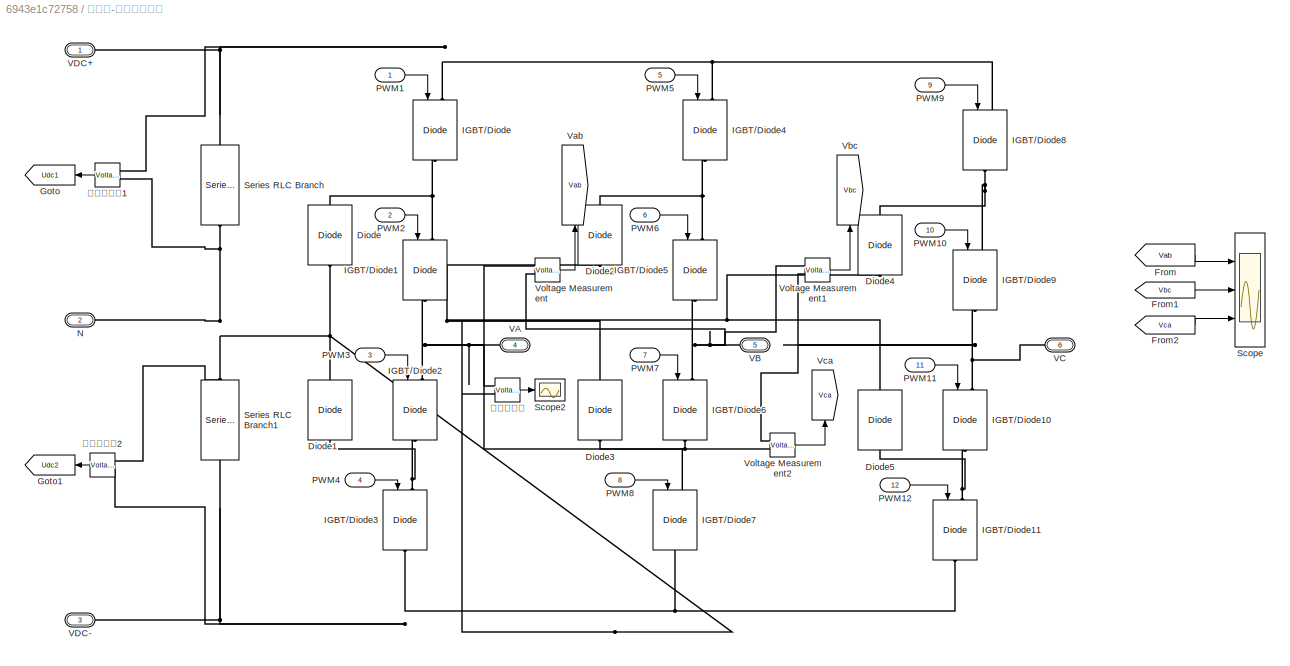
BLOCK [SubSystem] 主电路-三电平逆变器
  Ports = [12, 0, 0, 0, 0, 3, 3]
  RequestExecContextInheritance = off
BLOCK [Reference] 主电路-三电平逆变器/Diode  REF=spsDiodeLib/Diode
  NameLocation = right
  Ports = [0, 0, 0, 0, 0, 1, 1]
  SourceBlock = spsDiodeLib/Diode
  SourceProductBaseCode = PS
  SourceType = Diode
BLOCK [Reference] 主电路-三电平逆变器/Diode1  REF=spsDiodeLib/Diode
  NameLocation = right
  Ports = [0, 0, 0, 0, 0, 1, 1]
  SourceBlock = spsDiodeLib/Diode
  SourceProductBaseCode = PS
  SourceType = Diode
BLOCK [Reference] 主电路-三电平逆变器/Diode2  REF=spsDiodeLib/Diode
  NameLocation = right
  Ports = [0, 0, 0, 0, 0, 1, 1]
  SourceBlock = spsDiodeLib/Diode
  SourceProductBaseCode = PS
  SourceType = Diode
BLOCK [Reference] 主电路-三电平逆变器/Diode3  REF=spsDiodeLib/Diode
  NameLocation = right
  Ports = [0, 0, 0, 0, 0, 1, 1]
  SourceBlock = spsDiodeLib/Diode
  SourceProductBaseCode = PS
  SourceType = Diode
BLOCK [Reference] 主电路-三电平逆变器/Diode4  REF=spsDiodeLib/Diode
  NameLocation = right
  Ports = [0, 0, 0, 0, 0, 1, 1]
  SourceBlock = spsDiodeLib/Diode
  SourceProductBaseCode = PS
  SourceType = Diode
BLOCK [Reference] 主电路-三电平逆变器/Diode5  REF=spsDiodeLib/Diode
  NameLocation = right
  Ports = [0, 0, 0, 0, 0, 1, 1]
  SourceBlock = spsDiodeLib/Diode
  SourceProductBaseCode = PS
  SourceType = Diode
BLOCK [From] 主电路-三电平逆变器/From
  GotoTag = Vab
BLOCK [From] 主电路-三电平逆变器/From1
  GotoTag = Vbc
BLOCK [From] 主电路-三电平逆变器/From2
  GotoTag = Vca
BLOCK [Goto] 主电路-三电平逆变器/Goto
  GotoTag = Udc1
  TagVisibility = global
BLOCK [Goto] 主电路-三电平逆变器/Goto1
  GotoTag = Udc2
  TagVisibility = global
BLOCK [Reference] 主电路-三电平逆变器/IGBT//Diode  REF=spsIGBTDiodeLib/IGBT//Diode
  NameLocation = left
  Ports = [1, 0, 0, 0, 0, 1, 1]
  SourceBlock = spsIGBTDiodeLib/IGBT//Diode
  SourceProductBaseCode = PS
  SourceType = IGBT/Diode
BLOCK [Reference] 主电路-三电平逆变器/IGBT//Diode1  REF=spsIGBTDiodeLib/IGBT//Diode
  NameLocation = left
  Ports = [1, 0, 0, 0, 0, 1, 1]
  SourceBlock = spsIGBTDiodeLib/IGBT//Diode
  SourceProductBaseCode = PS
  SourceType = IGBT/Diode
BLOCK [Reference] 主电路-三电平逆变器/IGBT//Diode10  REF=spsIGBTDiodeLib/IGBT//Diode
  NameLocation = left
  Ports = [1, 0, 0, 0, 0, 1, 1]
  SourceBlock = spsIGBTDiodeLib/IGBT//Diode
  SourceProductBaseCode = PS
  SourceType = IGBT/Diode
BLOCK [Reference] 主电路-三电平逆变器/IGBT//Diode11  REF=spsIGBTDiodeLib/IGBT//Diode
  NameLocation = left
  Ports = [1, 0, 0, 0, 0, 1, 1]
  SourceBlock = spsIGBTDiodeLib/IGBT//Diode
  SourceProductBaseCode = PS
  SourceType = IGBT/Diode
BLOCK [Reference] 主电路-三电平逆变器/IGBT//Diode2  REF=spsIGBTDiodeLib/IGBT//Diode
  NameLocation = left
  Ports = [1, 0, 0, 0, 0, 1, 1]
  SourceBlock = spsIGBTDiodeLib/IGBT//Diode
  SourceProductBaseCode = PS
  SourceType = IGBT/Diode
BLOCK [Reference] 主电路-三电平逆变器/IGBT//Diode3  REF=spsIGBTDiodeLib/IGBT//Diode
  NameLocation = left
  Ports = [1, 0, 0, 0, 0, 1, 1]
  SourceBlock = spsIGBTDiodeLib/IGBT//Diode
  SourceProductBaseCode = PS
  SourceType = IGBT/Diode
BLOCK [Reference] 主电路-三电平逆变器/IGBT//Diode4  REF=spsIGBTDiodeLib/IGBT//Diode
  NameLocation = left
  Ports = [1, 0, 0, 0, 0, 1, 1]
  SourceBlock = spsIGBTDiodeLib/IGBT//Diode
  SourceProductBaseCode = PS
  SourceType = IGBT/Diode
BLOCK [Reference] 主电路-三电平逆变器/IGBT//Diode5  REF=spsIGBTDiodeLib/IGBT//Diode
  NameLocation = left
  Ports = [1, 0, 0, 0, 0, 1, 1]
  SourceBlock = spsIGBTDiodeLib/IGBT//Diode
  SourceProductBaseCode = PS
  SourceType = IGBT/Diode
BLOCK [Reference] 主电路-三电平逆变器/IGBT//Diode6  REF=spsIGBTDiodeLib/IGBT//Diode
  NameLocation = left
  Ports = [1, 0, 0, 0, 0, 1, 1]
  SourceBlock = spsIGBTDiodeLib/IGBT//Diode
  SourceProductBaseCode = PS
  SourceType = IGBT/Diode
BLOCK [Reference] 主电路-三电平逆变器/IGBT//Diode7  REF=spsIGBTDiodeLib/IGBT//Diode
  NameLocation = left
  Ports = [1, 0, 0, 0, 0, 1, 1]
  SourceBlock = spsIGBTDiodeLib/IGBT//Diode
  SourceProductBaseCode = PS
  SourceType = IGBT/Diode
BLOCK [Reference] 主电路-三电平逆变器/IGBT//Diode8  REF=spsIGBTDiodeLib/IGBT//Diode
  NameLocation = left
  Ports = [1, 0, 0, 0, 0, 1, 1]
  SourceBlock = spsIGBTDiodeLib/IGBT//Diode
  SourceProductBaseCode = PS
  SourceType = IGBT/Diode
BLOCK [Reference] 主电路-三电平逆变器/IGBT//Diode9  REF=spsIGBTDiodeLib/IGBT//Diode
  NameLocation = left
  Ports = [1, 0, 0, 0, 0, 1, 1]
  SourceBlock = spsIGBTDiodeLib/IGBT//Diode
  SourceProductBaseCode = PS
  SourceType = IGBT/Diode
BLOCK [PMIOPort] 主电路-三电平逆变器/N
  Port = 2
  Side = Left
BLOCK [Inport] 主电路-三电平逆变器/PWM1
BLOCK [Inport] 主电路-三电平逆变器/PWM10
  Port = 10
BLOCK [Inport] 主电路-三电平逆变器/PWM11
  Port = 11
BLOCK [Inport] 主电路-三电平逆变器/PWM12
  Port = 12
BLOCK [Inport] 主电路-三电平逆变器/PWM2
  Port = 2
BLOCK [Inport] 主电路-三电平逆变器/PWM3
  Port = 3
BLOCK [Inport] 主电路-三电平逆变器/PWM4
  Port = 4
BLOCK [Inport] 主电路-三电平逆变器/PWM5
  Port = 5
BLOCK [Inport] 主电路-三电平逆变器/PWM6
  Port = 6
BLOCK [Inport] 主电路-三电平逆变器/PWM7
  Port = 7
BLOCK [Inport] 主电路-三电平逆变器/PWM8
  Port = 8
BLOCK [Inport] 主电路-三电平逆变器/PWM9
  Port = 9
BLOCK [Scope] 主电路-三电平逆变器/Scope
  Floating = off
  NumInputPorts = 3
  Ports = [3]
  ScopeSpecificationString = Simulink.scopes.TimeScopeBlockCfg('CurrentConfiguration', extmgr.ConfigurationSet(extmgr.Configuration('Core','General UI',true),extmgr.Configuration('Core','Source UI',true),extmgr.Configuration('Sources','WiredSimulink',true,'DataLoggingVariableName','ScopeData2'),extmgr.Configuration('Visuals','Time Domain',true,'SerializedDisplays',{struct('MinYLimReal','-1250.21224','MaxYLimReal','1250.69075'...<+2755ch>
BLOCK [Scope] 主电路-三电平逆变器/Scope2
  Floating = off
  NumInputPorts = 1
  Ports = [1]
  ScopeSpecificationString = Simulink.scopes.TimeScopeBlockCfg('CurrentConfiguration', extmgr.ConfigurationSet(extmgr.Configuration('Core','General UI',true),extmgr.Configuration('Core','Source UI',true),extmgr.Configuration('Sources','WiredSimulink',true,'DataLoggingVariableName','ScopeData3'),extmgr.Configuration('Visuals','Time Domain',true,'SerializedDisplays',{struct('MinYLimReal','-1016.07917','MaxYLimReal','27.51555','...<+1428ch>
BLOCK [Reference] 主电路-三电平逆变器/Series RLC Branch  REF=spsSeriesRLCBranchLib/Series RLC Branch
  NameLocation = left
  Ports = [0, 0, 0, 0, 0, 1, 1]
  SourceBlock = spsSeriesRLCBranchLib/Series RLC Branch
  SourceProductBaseCode = PS
  SourceType = Series RLC Branch
BLOCK [Reference] 主电路-三电平逆变器/Series RLC Branch1  REF=spsSeriesRLCBranchLib/Series RLC Branch
  NameLocation = left
  Ports = [0, 0, 0, 0, 0, 1, 1]
  SourceBlock = spsSeriesRLCBranchLib/Series RLC Branch
  SourceProductBaseCode = PS
  SourceType = Series RLC Branch
BLOCK [PMIOPort] 主电路-三电平逆变器/VA
  Port = 4
  Side = Right
BLOCK [PMIOPort] 主电路-三电平逆变器/VB
  Port = 5
  Side = Right
BLOCK [PMIOPort] 主电路-三电平逆变器/VC
  Port = 6
  Side = Right
BLOCK [PMIOPort] 主电路-三电平逆变器/VDC+
  Side = Left
BLOCK [PMIOPort] 主电路-三电平逆变器/VDC-
  Port = 3
  Side = Left
BLOCK [Goto] 主电路-三电平逆变器/Vab
  GotoTag = Vab
  NameLocation = left
BLOCK [Goto] 主电路-三电平逆变器/Vbc
  GotoTag = Vbc
  NameLocation = left
BLOCK [Goto] 主电路-三电平逆变器/Vca
  GotoTag = Vca
  NameLocation = left
BLOCK [Reference] 主电路-三电平逆变器/Voltage Measurement  REF=spsVoltageMeasurementLib/Voltage Measurement
  Ports = [0, 1, 0, 0, 0, 2]
  SourceBlock = spsVoltageMeasurementLib/Voltage Measurement
  SourceProductBaseCode = PS
  SourceType = Voltage Measurement
  UserDataPersistent = on
BLOCK [Reference] 主电路-三电平逆变器/Voltage Measurement1  REF=spsVoltageMeasurementLib/Voltage Measurement
  Ports = [0, 1, 0, 0, 0, 2]
  SourceBlock = spsVoltageMeasurementLib/Voltage Measurement
  SourceProductBaseCode = PS
  SourceType = Voltage Measurement
  UserDataPersistent = on
BLOCK [Reference] 主电路-三电平逆变器/Voltage Measurement2  REF=spsVoltageMeasurementLib/Voltage Measurement
  Ports = [0, 1, 0, 0, 0, 2]
  SourceBlock = spsVoltageMeasurementLib/Voltage Measurement
  SourceProductBaseCode = PS
  SourceType = Voltage Measurement
  UserDataPersistent = on
BLOCK [Reference] 主电路-三电平逆变器/中性点电压  REF=spsVoltageMeasurementLib/Voltage Measurement
  Ports = [0, 1, 0, 0, 0, 2]
  SourceBlock = spsVoltageMeasurementLib/Voltage Measurement
  SourceProductBaseCode = PS
  SourceType = Voltage Measurement
  UserDataPersistent = on
BLOCK [Reference] 主电路-三电平逆变器/中性点电压1  REF=spsVoltageMeasurementLib/Voltage Measurement
  Ports = [0, 1, 0, 0, 0, 2]
  SourceBlock = spsVoltageMeasurementLib/Voltage Measurement
  SourceProductBaseCode = PS
  SourceType = Voltage Measurement
  UserDataPersistent = on
BLOCK [Reference] 主电路-三电平逆变器/中性点电压2  REF=spsVoltageMeasurementLib/Voltage Measurement
  Ports = [0, 1, 0, 0, 0, 2]
  SourceBlock = spsVoltageMeasurementLib/Voltage Measurement
  SourceProductBaseCode = PS
  SourceType = Voltage Measurement
  UserDataPersistent = on
BLOCK [SubSystem] 坐标变换
  Ports = [4, 8]
  RequestExecContextInheritance = off
BLOCK [Demux] 坐标变换/Demux
  Outputs = 3
  Ports = [1, 3]
BLOCK [Demux] 坐标变换/Demux1
  Outputs = 3
  Ports = [1, 3]
BLOCK [Demux] 坐标变换/Demux2
  Outputs = 3
  Ports = [1, 3]
BLOCK [Gain] 坐标变换/Gain
  Gain = sqrt(3)/Ub
BLOCK [Gain] 坐标变换/Gain1
  Gain = 1/Ib
BLOCK [Gain] 坐标变换/Gain2
  Gain = 1/Ib
BLOCK [Inport] 坐标变换/Iabc
  Port = 2
BLOCK [Inport] 坐标变换/Is
  Port = 3
BLOCK [Outport] 坐标变换/Pe
  Port = 7
BLOCK [Reference] 坐标变换/Power Measurement (Three-Phase)  REF=eePowerMeasurement/Power Measurement
(Three-Phase)
  Ports = [2, 2]
  SourceBlock = eePowerMeasurement/Power Measurement\n(Three-Phase)
  SourceProductBaseCode = PS
  SourceType = Power Measurement (Three-Phase)
BLOCK [Outport] 坐标变换/Qe
  Port = 8
BLOCK [Terminator] 坐标变换/Terminator
BLOCK [Terminator] 坐标变换/Terminator1
BLOCK [Terminator] 坐标变换/Terminator2
BLOCK [Inport] 坐标变换/Vs
BLOCK [Reference] 坐标变换/abc to dq0  REF=spsabctodq0Lib/abc to dq0
  Ports = [2, 1]
  SourceBlock = spsabctodq0Lib/abc to dq0
  SourceProductBaseCode = PS
  SourceType = abc to dq0 Transformation
BLOCK [Reference] 坐标变换/abc to dq1  REF=spsabctodq0Lib/abc to dq0
  Ports = [2, 1]
  SourceBlock = spsabctodq0Lib/abc to dq0
  SourceProductBaseCode = PS
  SourceType = abc to dq0 Transformation
BLOCK [Reference] 坐标变换/abc to dq2  REF=spsabctodq0Lib/abc to dq0
  Ports = [2, 1]
  SourceBlock = spsabctodq0Lib/abc to dq0
  SourceProductBaseCode = PS
  SourceType = abc to dq0 Transformation
BLOCK [Outport] 坐标变换/id
  Port = 3
BLOCK [Outport] 坐标变换/iq
  Port = 4
BLOCK [Outport] 坐标变换/isd
  Port = 5
BLOCK [Outport] 坐标变换/isq
  Port = 6
BLOCK [Outport] 坐标变换/vd
BLOCK [Outport] 坐标变换/vq
  Port = 2
BLOCK [Inport] 坐标变换/wt
  Port = 4
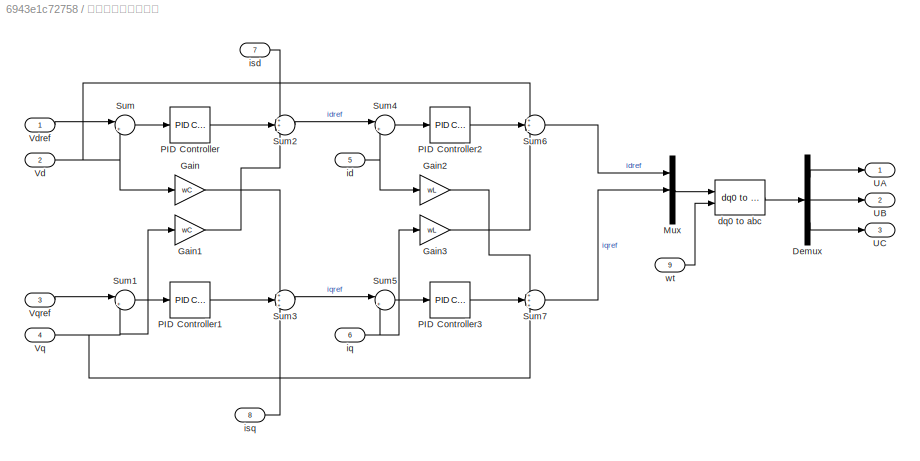
BLOCK [SubSystem] 电压电流双闭环控制
  Ports = [9, 3]
  RequestExecContextInheritance = off
BLOCK [Demux] 电压电流双闭环控制/Demux
  Outputs = 3
  Ports = [1, 3]
BLOCK [Gain] 电压电流双闭环控制/Gain
  Gain = wC
BLOCK [Gain] 电压电流双闭环控制/Gain1
  Gain = wC
BLOCK [Gain] 电压电流双闭环控制/Gain2
  Gain = wL
BLOCK [Gain] 电压电流双闭环控制/Gain3
  Gain = wL
BLOCK [Mux] 电压电流双闭环控制/Mux
  DisplayOption = bar
  Inputs = 3
  Ports = [3, 1]
BLOCK [Reference] 电压电流双闭环控制/PID Controller  REF=slpidlib/PID Controller
  Ports = [1, 1]
  SourceBlock = slpidlib/PID Controller
  SourceProductBaseCode = SL
  SourceType = PID 1dof
BLOCK [Reference] 电压电流双闭环控制/PID Controller1  REF=slpidlib/PID Controller
  Ports = [1, 1]
  SourceBlock = slpidlib/PID Controller
  SourceProductBaseCode = SL
  SourceType = PID 1dof
BLOCK [Reference] 电压电流双闭环控制/PID Controller2  REF=slpidlib/PID Controller
  Ports = [1, 1]
  SourceBlock = slpidlib/PID Controller
  SourceProductBaseCode = SL
  SourceType = PID 1dof
BLOCK [Reference] 电压电流双闭环控制/PID Controller3  REF=slpidlib/PID Controller
  Ports = [1, 1]
  SourceBlock = slpidlib/PID Controller
  SourceProductBaseCode = SL
  SourceType = PID 1dof
BLOCK [Sum] 电压电流双闭环控制/Sum
  Inputs = |+-
  Ports = [2, 1]
BLOCK [Sum] 电压电流双闭环控制/Sum1
  Inputs = |+-
  Ports = [2, 1]
BLOCK [Sum] 电压电流双闭环控制/Sum2
  Inputs = ++-
  Ports = [3, 1]
BLOCK [Sum] 电压电流双闭环控制/Sum3
  Inputs = +++
  Ports = [3, 1]
BLOCK [Sum] 电压电流双闭环控制/Sum4
  Inputs = |+-
  Ports = [2, 1]
BLOCK [Sum] 电压电流双闭环控制/Sum5
  Inputs = |+-
  Ports = [2, 1]
BLOCK [Sum] 电压电流双闭环控制/Sum6
  Inputs = ++-
  Ports = [3, 1]
BLOCK [Sum] 电压电流双闭环控制/Sum7
  Inputs = +++
  Ports = [3, 1]
BLOCK [Outport] 电压电流双闭环控制/UA
BLOCK [Outport] 电压电流双闭环控制/UB
  Port = 2
BLOCK [Outport] 电压电流双闭环控制/UC
  Port = 3
BLOCK [Inport] 电压电流双闭环控制/Vd
  Port = 2
BLOCK [Inport] 电压电流双闭环控制/Vdref
BLOCK [Inport] 电压电流双闭环控制/Vq
  Port = 4
BLOCK [Inport] 电压电流双闭环控制/Vqref
  Port = 3
BLOCK [Reference] 电压电流双闭环控制/dq0 to abc  REF=spsdq0toabcLib/dq0 to abc
  Ports = [2, 1]
  SourceBlock = spsdq0toabcLib/dq0 to abc
  SourceProductBaseCode = PS
  SourceType = dq0 to abc Transformation
BLOCK [Inport] 电压电流双闭环控制/id
  Port = 5
BLOCK [Inport] 电压电流双闭环控制/iq
  Port = 6
BLOCK [Inport] 电压电流双闭环控制/isd
  Port = 7
BLOCK [Inport] 电压电流双闭环控制/isq
  Port = 8
BLOCK [Inport] 电压电流双闭环控制/wt
  Port = 9
ANNOTATION (root): 均为标幺值
ANNOTATION (root): 可调整
ANNOTATION VSG控制: 虚拟阻抗
ANNOTATION VSG控制/VSG Q-V控制一次调压: 标幺化 Ub为线电压的基值
ANNOTATION VSG控制/VSG Q-V控制一次调压: 相电压的基值需要乘根号3
ANNOTATION 坐标变换: 标幺因为三相，需要多乘根号3
LINE Constant1:1 -> VSG控制:3
LINE Constant2:1 -> VSG控制:5
LINE Constant:1 -> VSG控制:1
LINE From10:1 -> 电压电流双闭环控制:4
LINE From11:1 -> 电压电流双闭环控制:5
LINE From12:1 -> 电压电流双闭环控制:6
LINE From13:1 -> 电压电流双闭环控制:7
LINE From14:1 -> 电压电流双闭环控制:8
LINE From15:1 -> SVPWM调制:1
LINE From16:1 -> SVPWM调制:2
LINE From17:1 -> SVPWM调制:3
LINE From18:1 -> Scope:1
LINE From19:1 -> Scope:2
LINE From1:1 -> 坐标变换:2
LINE From20:1 -> Scope1:1
LINE From21:1 -> Power (3ph, Instantaneous):1
LINE From22:1 -> Power (3ph, Instantaneous):2
LINE From2:1 -> 坐标变换:3
LINE From3:1 -> 坐标变换:4
LINE From4:1 -> VSG控制:2
LINE From5:1 -> VSG控制:4
LINE From6:1 -> VSG控制:6
LINE From7:1 -> VSG控制:7
LINE From8:1 -> VSG控制:8
LINE From9:1 -> 电压电流双闭环控制:2
LINE From:1 -> 坐标变换:1
LINE Power (3ph, Instantaneous):1 -> Scope2:1
LINE Power (3ph, Instantaneous):2 -> Scope2:2
LINE SVPWM调制/Demux:1 -> SVPWM调制/PWM1:1
LINE SVPWM调制/Demux:10 -> SVPWM调制/PWM4:1
LINE SVPWM调制/Demux:11 -> SVPWM调制/PWM8:1
LINE SVPWM调制/Demux:12 -> SVPWM调制/PWM12:1
LINE SVPWM调制/Demux:2 -> SVPWM调制/PWM5:1
LINE SVPWM调制/Demux:3 -> SVPWM调制/PWM9:1
LINE SVPWM调制/Demux:4 -> SVPWM调制/PWM2:1
LINE SVPWM调制/Demux:5 -> SVPWM调制/PWM6:1
LINE SVPWM调制/Demux:6 -> SVPWM调制/PWM10:1
LINE SVPWM调制/Demux:7 -> SVPWM调制/PWM3:1
LINE SVPWM调制/Demux:8 -> SVPWM调制/PWM7:1
LINE SVPWM调制/Demux:9 -> SVPWM调制/PWM11:1
LINE SVPWM调制/Mux:1 -> SVPWM调制/Demux:1
NET SVPWM调制/SVPWM/Complex to Magnitude-Angle:1 -> SVPWM调制/SVPWM/小扇区:1, SVPWM调制/SVPWM/矢量作用时间:2
NET SVPWM调制/SVPWM/Complex to Magnitude-Angle:2 -> SVPWM调制/SVPWM/Scope2:1, SVPWM调制/SVPWM/Sum:1
LINE SVPWM调制/SVPWM/Constant1:1 -> SVPWM调制/SVPWM/矢量作用时间:3
LINE SVPWM调制/SVPWM/Constant:1 -> SVPWM调制/SVPWM/Sum:2
LINE SVPWM调制/SVPWM/Gain1:1 -> SVPWM调制/SVPWM/Mux:2
LINE SVPWM调制/SVPWM/Gain2:1 -> SVPWM调制/SVPWM/Mux:3
LINE SVPWM调制/SVPWM/Gain:1 -> SVPWM调制/SVPWM/Mux:1
LINE SVPWM调制/SVPWM/Mux:1 -> SVPWM调制/SVPWM/YJ:1
LINE SVPWM调制/SVPWM/Reference Voltage:1 -> SVPWM调制/SVPWM/Complex to Magnitude-Angle:1
LINE SVPWM调制/SVPWM/Sum:1 -> SVPWM调制/SVPWM/大扇区:1
LINE SVPWM调制/SVPWM/ua:1 -> SVPWM调制/SVPWM/Reference Voltage:1
LINE SVPWM调制/SVPWM/ub:1 -> SVPWM调制/SVPWM/Reference Voltage:2
LINE SVPWM调制/SVPWM/uc:1 -> SVPWM调制/SVPWM/Reference Voltage:3
LINE SVPWM调制/SVPWM/上半周期时间分配:1 -> SVPWM调制/SVPWM/按规律选择实际时间分配:1
LINE SVPWM调制/SVPWM/上半周期时间分配:2 -> SVPWM调制/SVPWM/按规律选择实际时间分配:2
LINE SVPWM调制/SVPWM/上半周期时间分配:3 -> SVPWM调制/SVPWM/按规律选择实际时间分配:3
LINE SVPWM调制/SVPWM/下半周期时间分配:1 -> SVPWM调制/SVPWM/按规律选择实际时间分配:4
LINE SVPWM调制/SVPWM/下半周期时间分配:2 -> SVPWM调制/SVPWM/按规律选择实际时间分配:5
LINE SVPWM调制/SVPWM/下半周期时间分配:3 -> SVPWM调制/SVPWM/按规律选择实际时间分配:6
NET SVPWM调制/SVPWM/大扇区:1 -> SVPWM调制/SVPWM/按规律选择实际时间分配:7, SVPWM调制/SVPWM/羊角波生成:1
NET SVPWM调制/SVPWM/大扇区:2 -> SVPWM调制/SVPWM/小扇区:2, SVPWM调制/SVPWM/矢量作用时间:4
NET SVPWM调制/SVPWM/小扇区:1 -> SVPWM调制/SVPWM/Scope3:1, SVPWM调制/SVPWM/上半周期时间分配:4, SVPWM调制/SVPWM/下半周期时间分配:4, SVPWM调制/SVPWM/矢量作用时间:1, SVPWM调制/SVPWM/第一大扇区羊角分配:1, SVPWM调制/SVPWM/第二大扇区羊角分配:1
NET SVPWM调制/SVPWM/按规律选择实际时间分配:1 -> SVPWM调制/SVPWM/第一大扇区羊角分配:2, SVPWM调制/SVPWM/第二大扇区羊角分配:2
NET SVPWM调制/SVPWM/按规律选择实际时间分配:2 -> SVPWM调制/SVPWM/第一大扇区羊角分配:3, SVPWM调制/SVPWM/第二大扇区羊角分配:3
NET SVPWM调制/SVPWM/按规律选择实际时间分配:3 -> SVPWM调制/SVPWM/第一大扇区羊角分配:4, SVPWM调制/SVPWM/第二大扇区羊角分配:4
NET SVPWM调制/SVPWM/矢量作用时间:1 -> SVPWM调制/SVPWM/上半周期时间分配:1, SVPWM调制/SVPWM/下半周期时间分配:1
NET SVPWM调制/SVPWM/矢量作用时间:2 -> SVPWM调制/SVPWM/上半周期时间分配:2, SVPWM调制/SVPWM/下半周期时间分配:2
NET SVPWM调制/SVPWM/矢量作用时间:3 -> SVPWM调制/SVPWM/上半周期时间分配:3, SVPWM调制/SVPWM/下半周期时间分配:3
LINE SVPWM调制/SVPWM/第一大扇区羊角分配:1 -> SVPWM调制/SVPWM/羊角波生成:2
LINE SVPWM调制/SVPWM/第一大扇区羊角分配:2 -> SVPWM调制/SVPWM/羊角波生成:3
LINE SVPWM调制/SVPWM/第一大扇区羊角分配:3 -> SVPWM调制/SVPWM/羊角波生成:4
LINE SVPWM调制/SVPWM/第二大扇区羊角分配:1 -> SVPWM调制/SVPWM/羊角波生成:5
LINE SVPWM调制/SVPWM/第二大扇区羊角分配:2 -> SVPWM调制/SVPWM/羊角波生成:6
LINE SVPWM调制/SVPWM/第二大扇区羊角分配:3 -> SVPWM调制/SVPWM/羊角波生成:7
LINE SVPWM调制/SVPWM/羊角波生成:1 -> SVPWM调制/SVPWM/Gain:1
LINE SVPWM调制/SVPWM/羊角波生成:2 -> SVPWM调制/SVPWM/Gain1:1
LINE SVPWM调制/SVPWM/羊角波生成:3 -> SVPWM调制/SVPWM/Gain2:1
NET SVPWM调制/SVPWM:1 -> SVPWM调制/Scope:1, SVPWM调制/调制:1
LINE SVPWM调制/ua:1 -> SVPWM调制/SVPWM:1
LINE SVPWM调制/ub:1 -> SVPWM调制/SVPWM:2
LINE SVPWM调制/uc:1 -> SVPWM调制/SVPWM:3
LINE SVPWM调制/调制/Constant:1 -> SVPWM调制/调制/Sum:1
LINE SVPWM调制/调制/Logical Operator1:1 -> SVPWM调制/调制/S3:1
LINE SVPWM调制/调制/Logical Operator:1 -> SVPWM调制/调制/S4:1
NET SVPWM调制/调制/Relational Operator1:1 -> SVPWM调制/调制/Logical Operator1:1, SVPWM调制/调制/S1:1
NET SVPWM调制/调制/Relational Operator:1 -> SVPWM调制/调制/Logical Operator:1, SVPWM调制/调制/S2:1
NET SVPWM调制/调制/Repeating Sequence:1 -> SVPWM调制/调制/Relational Operator1:2, SVPWM调制/调制/Relational Operator:2
NET SVPWM调制/调制/Saturation1:1 -> SVPWM调制/调制/Relational Operator1:1, SVPWM调制/调制/Scope:2
NET SVPWM调制/调制/Saturation:1 -> SVPWM调制/调制/Relational Operator:1, SVPWM调制/调制/Scope:1
LINE SVPWM调制/调制/Sum:1 -> SVPWM调制/调制/Saturation:1
NET SVPWM调制/调制/YJ:1 -> SVPWM调制/调制/Saturation1:1, SVPWM调制/调制/Sum:2
LINE SVPWM调制/调制:1 -> SVPWM调制/Mux:1
LINE SVPWM调制/调制:2 -> SVPWM调制/Mux:2
LINE SVPWM调制/调制:3 -> SVPWM调制/Mux:3
LINE SVPWM调制/调制:4 -> SVPWM调制/Mux:4
LINE SVPWM调制:1 -> 主电路-三电平逆变器:1
LINE SVPWM调制:10 -> 主电路-三电平逆变器:10
LINE SVPWM调制:11 -> 主电路-三电平逆变器:11
LINE SVPWM调制:12 -> 主电路-三电平逆变器:12
LINE SVPWM调制:2 -> 主电路-三电平逆变器:2
LINE SVPWM调制:3 -> 主电路-三电平逆变器:3
LINE SVPWM调制:4 -> 主电路-三电平逆变器:4
LINE SVPWM调制:5 -> 主电路-三电平逆变器:5
LINE SVPWM调制:6 -> 主电路-三电平逆变器:6
LINE SVPWM调制:7 -> 主电路-三电平逆变器:7
LINE SVPWM调制:8 -> 主电路-三电平逆变器:8
LINE SVPWM调制:9 -> 主电路-三电平逆变器:9
LINE VSG控制/Constant:1 -> VSG控制/Sum:2
LINE VSG控制/Demux:1 -> VSG控制/Sum1:2
LINE VSG控制/Demux:2 -> VSG控制/Sum2:2
LINE VSG控制/Demux:3 -> VSG控制/Terminator:1
LINE VSG控制/Gain1:1 -> VSG控制/Sum2:3
LINE VSG控制/Gain2:1 -> VSG控制/Sum2:1
LINE VSG控制/Gain3:1 -> VSG控制/Sum1:3
LINE VSG控制/Gain:1 -> VSG控制/Sum1:1
LINE VSG控制/Pe:1 -> VSG控制/VSG有功控制一次调频:2
LINE VSG控制/Pref:1 -> VSG控制/VSG有功控制一次调频:1
LINE VSG控制/Product:1 -> VSG控制/abc to dq0:1
LINE VSG控制/Qe:1 -> VSG控制/VSG Q-V控制一次调压:4
LINE VSG控制/Qref:1 -> VSG控制/VSG Q-V控制一次调压:3
LINE VSG控制/Sin:1 -> VSG控制/Product:1
LINE VSG控制/Sum1:1 -> VSG控制/Vdref:1
LINE VSG控制/Sum2:1 -> VSG控制/Vqref:1
LINE VSG控制/Sum:1 -> VSG控制/Sin:1
LINE VSG控制/Un:1 -> VSG控制/VSG Q-V控制一次调压:1
LINE VSG控制/VSG Q-V控制一次调压/Gain4:1 -> VSG控制/VSG Q-V控制一次调压/Sum5:1
LINE VSG控制/VSG Q-V控制一次调压/Gain5:1 -> VSG控制/VSG Q-V控制一次调压/Sum5:2
LINE VSG控制/VSG Q-V控制一次调压/Gain6:1 -> VSG控制/VSG Q-V控制一次调压/Sum6:1
LINE VSG控制/VSG Q-V控制一次调压/Gain7:1 -> VSG控制/VSG Q-V控制一次调压/Sum7:1
LINE VSG控制/VSG Q-V控制一次调压/Gain8:1 -> VSG控制/VSG Q-V控制一次调压/Sum7:2
LINE VSG控制/VSG Q-V控制一次调压/Gain9:1 -> VSG控制/VSG Q-V控制一次调压/Sum8:2
LINE VSG控制/VSG Q-V控制一次调压/PID Controller:1 -> VSG控制/VSG Q-V控制一次调压/Sum8:1
LINE VSG控制/VSG Q-V控制一次调压/Qe:1 -> VSG控制/VSG Q-V控制一次调压/Gain8:1
LINE VSG控制/VSG Q-V控制一次调压/Qref:1 -> VSG控制/VSG Q-V控制一次调压/Gain7:1
LINE VSG控制/VSG Q-V控制一次调压/RMS1:1 -> VSG控制/VSG Q-V控制一次调压/Gain5:1
LINE VSG控制/VSG Q-V控制一次调压/Sum5:1 -> VSG控制/VSG Q-V控制一次调压/Gain6:1
LINE VSG控制/VSG Q-V控制一次调压/Sum6:1 -> VSG控制/VSG Q-V控制一次调压/PID Controller:1
LINE VSG控制/VSG Q-V控制一次调压/Sum7:1 -> VSG控制/VSG Q-V控制一次调压/Sum6:2
LINE VSG控制/VSG Q-V控制一次调压/Sum8:1 -> VSG控制/VSG Q-V控制一次调压/E:1
LINE VSG控制/VSG Q-V控制一次调压/Un:1 -> VSG控制/VSG Q-V控制一次调压/Gain4:1
LINE VSG控制/VSG Q-V控制一次调压/Vs:1 -> VSG控制/VSG Q-V控制一次调压/RMS1:1
LINE VSG控制/VSG Q-V控制一次调压/空载电动势 峰值:1 -> VSG控制/VSG Q-V控制一次调压/Gain9:1
LINE VSG控制/VSG Q-V控制一次调压:1 -> VSG控制/Product:2
LINE VSG控制/VSG有功控制一次调频/Constant1:1 -> VSG控制/VSG有功控制一次调频/Math Function:2
NET VSG控制/VSG有功控制一次调频/Constant:1 -> VSG控制/VSG有功控制一次调频/Sum4:2, VSG控制/VSG有功控制一次调频/Sum:1
LINE VSG控制/VSG有功控制一次调频/Gain1:1 -> VSG控制/VSG有功控制一次调频/Integrator:1
LINE VSG控制/VSG有功控制一次调频/Gain2:1 -> VSG控制/VSG有功控制一次调频/Sum3:2
LINE VSG控制/VSG有功控制一次调频/Gain3:1 -> VSG控制/VSG有功控制一次调频/f:1
LINE VSG控制/VSG有功控制一次调频/Gain:1 -> VSG控制/VSG有功控制一次调频/Sum1:1
LINE VSG控制/VSG有功控制一次调频/Integrator1:1 -> VSG控制/VSG有功控制一次调频/Math Function:1
NET VSG控制/VSG有功控制一次调频/Integrator:1 -> VSG控制/VSG有功控制一次调频/Gain2:1, VSG控制/VSG有功控制一次调频/Sum4:1
LINE VSG控制/VSG有功控制一次调频/Math Function:1 -> VSG控制/VSG有功控制一次调频/wt:1
LINE VSG控制/VSG有功控制一次调频/Pe:1 -> VSG控制/VSG有功控制一次调频/Sum2:2
LINE VSG控制/VSG有功控制一次调频/Pref:1 -> VSG控制/VSG有功控制一次调频/Sum1:2
LINE VSG控制/VSG有功控制一次调频/Product:1 -> VSG控制/VSG有功控制一次调频/Sum3:1
LINE VSG控制/VSG有功控制一次调频/Sum1:1 -> VSG控制/VSG有功控制一次调频/Sum2:1
LINE VSG控制/VSG有功控制一次调频/Sum2:1 -> VSG控制/VSG有功控制一次调频/Product:1
LINE VSG控制/VSG有功控制一次调频/Sum3:1 -> VSG控制/VSG有功控制一次调频/Gain1:1
NET VSG控制/VSG有功控制一次调频/Sum4:1 -> VSG控制/VSG有功控制一次调频/Gain3:1, VSG控制/VSG有功控制一次调频/Integrator1:1, VSG控制/VSG有功控制一次调频/Product:2, VSG控制/VSG有功控制一次调频/Sum:2
LINE VSG控制/VSG有功控制一次调频/Sum:1 -> VSG控制/VSG有功控制一次调频/Gain:1
LINE VSG控制/VSG有功控制一次调频:1 -> VSG控制/Scope:1
NET VSG控制/VSG有功控制一次调频:2 -> VSG控制/Sum:1, VSG控制/abc to dq0:2, VSG控制/wt:1
LINE VSG控制/Vs:1 -> VSG控制/VSG Q-V控制一次调压:2
LINE VSG控制/abc to dq0:1 -> VSG控制/Demux:1
NET VSG控制/id:1 -> VSG控制/Gain2:1, VSG控制/Gain:1
NET VSG控制/iq:1 -> VSG控制/Gain1:1, VSG控制/Gain3:1
LINE VSG控制:1 -> 电压电流双闭环控制:1
LINE VSG控制:2 -> 电压电流双闭环控制:3
NET VSG控制:3 -> Goto8:1, 电压电流双闭环控制:9
LINE 中点点位平衡1/Current Measurement:1 -> 中点点位平衡1/中点电流:1
NET 中点点位平衡1/Data Type Conversion:1 -> 中点点位平衡1/Goto5:1, 中点点位平衡1/Logical Operator:1
NET 中点点位平衡1/From1:1 -> 中点点位平衡1/Scope1:2, 中点点位平衡1/Sum:2
LINE 中点点位平衡1/From2:1 -> 中点点位平衡1/Sum1:2
LINE 中点点位平衡1/From3:1 -> 中点点位平衡1/IGBT//Diode:1
LINE 中点点位平衡1/From4:1 -> 中点点位平衡1/IGBT//Diode1:1
NET 中点点位平衡1/From:1 -> 中点点位平衡1/Scope1:1, 中点点位平衡1/Sum:1
LINE 中点点位平衡1/Logical Operator:1 -> 中点点位平衡1/Goto6:1
LINE 中点点位平衡1/PID Controller1:1 -> 中点点位平衡1/Relational Operator:1
LINE 中点点位平衡1/PID Controller:1 -> 中点点位平衡1/Sum1:1
LINE 中点点位平衡1/Relational Operator:1 -> 中点点位平衡1/Data Type Conversion:1
LINE 中点点位平衡1/Repeating Sequence:1 -> 中点点位平衡1/Relational Operator:2
LINE 中点点位平衡1/Sum1:1 -> 中点点位平衡1/PID Controller1:1
LINE 中点点位平衡1/Sum:1 -> 中点点位平衡1/PID Controller:1
LINE 主电路-三电平逆变器/From1:1 -> 主电路-三电平逆变器/Scope:2
LINE 主电路-三电平逆变器/From2:1 -> 主电路-三电平逆变器/Scope:3
LINE 主电路-三电平逆变器/From:1 -> 主电路-三电平逆变器/Scope:1
LINE 主电路-三电平逆变器/PWM10:1 -> 主电路-三电平逆变器/IGBT//Diode9:1
LINE 主电路-三电平逆变器/PWM11:1 -> 主电路-三电平逆变器/IGBT//Diode10:1
LINE 主电路-三电平逆变器/PWM12:1 -> 主电路-三电平逆变器/IGBT//Diode11:1
LINE 主电路-三电平逆变器/PWM1:1 -> 主电路-三电平逆变器/IGBT//Diode:1
LINE 主电路-三电平逆变器/PWM2:1 -> 主电路-三电平逆变器/IGBT//Diode1:1
LINE 主电路-三电平逆变器/PWM3:1 -> 主电路-三电平逆变器/IGBT//Diode2:1
LINE 主电路-三电平逆变器/PWM4:1 -> 主电路-三电平逆变器/IGBT//Diode3:1
LINE 主电路-三电平逆变器/PWM5:1 -> 主电路-三电平逆变器/IGBT//Diode4:1
LINE 主电路-三电平逆变器/PWM6:1 -> 主电路-三电平逆变器/IGBT//Diode5:1
LINE 主电路-三电平逆变器/PWM7:1 -> 主电路-三电平逆变器/IGBT//Diode6:1
LINE 主电路-三电平逆变器/PWM8:1 -> 主电路-三电平逆变器/IGBT//Diode7:1
LINE 主电路-三电平逆变器/PWM9:1 -> 主电路-三电平逆变器/IGBT//Diode8:1
LINE 主电路-三电平逆变器/Voltage Measurement1:1 -> 主电路-三电平逆变器/Vbc:1
LINE 主电路-三电平逆变器/Voltage Measurement2:1 -> 主电路-三电平逆变器/Vca:1
LINE 主电路-三电平逆变器/Voltage Measurement:1 -> 主电路-三电平逆变器/Vab:1
LINE 主电路-三电平逆变器/中性点电压1:1 -> 主电路-三电平逆变器/Goto:1
LINE 主电路-三电平逆变器/中性点电压2:1 -> 主电路-三电平逆变器/Goto1:1
LINE 主电路-三电平逆变器/中性点电压:1 -> 主电路-三电平逆变器/Scope2:1
LINE 坐标变换/Demux1:1 -> 坐标变换/id:1
LINE 坐标变换/Demux1:2 -> 坐标变换/iq:1
LINE 坐标变换/Demux1:3 -> 坐标变换/Terminator1:1
LINE 坐标变换/Demux2:1 -> 坐标变换/isd:1
LINE 坐标变换/Demux2:2 -> 坐标变换/isq:1
LINE 坐标变换/Demux2:3 -> 坐标变换/Terminator2:1
LINE 坐标变换/Demux:1 -> 坐标变换/vd:1
LINE 坐标变换/Demux:2 -> 坐标变换/vq:1
LINE 坐标变换/Demux:3 -> 坐标变换/Terminator:1
LINE 坐标变换/Gain1:1 -> 坐标变换/abc to dq1:1
LINE 坐标变换/Gain2:1 -> 坐标变换/abc to dq2:1
LINE 坐标变换/Gain:1 -> 坐标变换/abc to dq0:1
NET 坐标变换/Iabc:1 -> 坐标变换/Gain1:1, 坐标变换/Power Measurement (Three-Phase):2
LINE 坐标变换/Is:1 -> 坐标变换/Gain2:1
LINE 坐标变换/Power Measurement (Three-Phase):1 -> 坐标变换/Pe:1
LINE 坐标变换/Power Measurement (Three-Phase):2 -> 坐标变换/Qe:1
NET 坐标变换/Vs:1 -> 坐标变换/Gain:1, 坐标变换/Power Measurement (Three-Phase):1
LINE 坐标变换/abc to dq0:1 -> 坐标变换/Demux:1
LINE 坐标变换/abc to dq1:1 -> 坐标变换/Demux1:1
LINE 坐标变换/abc to dq2:1 -> 坐标变换/Demux2:1
NET 坐标变换/wt:1 -> 坐标变换/abc to dq0:2, 坐标变换/abc to dq1:2, 坐标变换/abc to dq2:2
LINE 坐标变换:1 -> Goto:1
LINE 坐标变换:2 -> Goto1:1
LINE 坐标变换:3 -> Goto2:1
LINE 坐标变换:4 -> Goto3:1
LINE 坐标变换:5 -> Goto4:1
LINE 坐标变换:6 -> Goto5:1
LINE 坐标变换:7 -> Goto6:1
LINE 坐标变换:8 -> Goto7:1
LINE 电压电流双闭环控制/Demux:1 -> 电压电流双闭环控制/UA:1
LINE 电压电流双闭环控制/Demux:2 -> 电压电流双闭环控制/UB:1
LINE 电压电流双闭环控制/Demux:3 -> 电压电流双闭环控制/UC:1
LINE 电压电流双闭环控制/Gain1:1 -> 电压电流双闭环控制/Sum2:3
LINE 电压电流双闭环控制/Gain2:1 -> 电压电流双闭环控制/Sum7:1
LINE 电压电流双闭环控制/Gain3:1 -> 电压电流双闭环控制/Sum6:3
LINE 电压电流双闭环控制/Gain:1 -> 电压电流双闭环控制/Sum3:1
LINE 电压电流双闭环控制/Mux:1 -> 电压电流双闭环控制/dq0 to abc:1
LINE 电压电流双闭环控制/PID Controller1:1 -> 电压电流双闭环控制/Sum3:2
LINE 电压电流双闭环控制/PID Controller2:1 -> 电压电流双闭环控制/Sum6:2
LINE 电压电流双闭环控制/PID Controller3:1 -> 电压电流双闭环控制/Sum7:2
LINE 电压电流双闭环控制/PID Controller:1 -> 电压电流双闭环控制/Sum2:2
LINE 电压电流双闭环控制/Sum1:1 -> 电压电流双闭环控制/PID Controller1:1
LINE 电压电流双闭环控制/Sum2:1 -> 电压电流双闭环控制/Sum4:1
LINE 电压电流双闭环控制/Sum3:1 -> 电压电流双闭环控制/Sum5:1
LINE 电压电流双闭环控制/Sum4:1 -> 电压电流双闭环控制/PID Controller2:1
LINE 电压电流双闭环控制/Sum5:1 -> 电压电流双闭环控制/PID Controller3:1
LINE 电压电流双闭环控制/Sum6:1 -> 电压电流双闭环控制/Mux:1
LINE 电压电流双闭环控制/Sum7:1 -> 电压电流双闭环控制/Mux:2
LINE 电压电流双闭环控制/Sum:1 -> 电压电流双闭环控制/PID Controller:1
NET 电压电流双闭环控制/Vd:1 -> 电压电流双闭环控制/Gain:1, 电压电流双闭环控制/Sum6:1, 电压电流双闭环控制/Sum:2
LINE 电压电流双闭环控制/Vdref:1 -> 电压电流双闭环控制/Sum:1
NET 电压电流双闭环控制/Vq:1 -> 电压电流双闭环控制/Gain1:1, 电压电流双闭环控制/Sum1:2, 电压电流双闭环控制/Sum7:3
LINE 电压电流双闭环控制/Vqref:1 -> 电压电流双闭环控制/Sum1:1
LINE 电压电流双闭环控制/dq0 to abc:1 -> 电压电流双闭环控制/Demux:1
NET 电压电流双闭环控制/id:1 -> 电压电流双闭环控制/Gain2:1, 电压电流双闭环控制/Sum4:2
NET 电压电流双闭环控制/iq:1 -> 电压电流双闭环控制/Gain3:1, 电压电流双闭环控制/Sum5:2
LINE 电压电流双闭环控制/isd:1 -> 电压电流双闭环控制/Sum2:1
LINE 电压电流双闭环控制/isq:1 -> 电压电流双闭环控制/Sum3:3
LINE 电压电流双闭环控制/wt:1 -> 电压电流双闭环控制/dq0 to abc:2
LINE 电压电流双闭环控制:1 -> Goto9:1
LINE 电压电流双闭环控制:2 -> Goto10:1
LINE 电压电流双闭环控制:3 -> Goto11:1
PLINE DC Voltage Source1:LConn1 -- 中点点位平衡1:LConn2
PLINE DC Voltage Source1:RConn1 -- 中点点位平衡1:LConn1
PLINE Ground:LConn1 -- Three-Phase Programmable Voltage Source:LConn1
PNET net1: PCC:LConn1 -- Three-Phase Series RLC Load:LConn1 -- Three-Phase V-I Measurement1:RConn1
PNET net2: PCC:LConn2 -- Three-Phase Series RLC Load:LConn2 -- Three-Phase V-I Measurement1:RConn2
PNET net3: PCC:LConn3 -- Three-Phase Series RLC Load:LConn3 -- Three-Phase V-I Measurement1:RConn3
PLINE PCC:RConn1 -- Three-Phase Series RLC Branch:LConn1
PLINE PCC:RConn2 -- Three-Phase Series RLC Branch:LConn2
PLINE PCC:RConn3 -- Three-Phase Series RLC Branch:LConn3
PLINE Series RLC Branch1:LConn1 -- Three-Phase V-I Measurement:RConn2
PNET net4: Series RLC Branch1:RConn1 -- Series RLC Branch4:LConn1 -- Three-Phase V-I Measurement1:LConn2
PLINE Series RLC Branch2:LConn1 -- Three-Phase V-I Measurement:RConn3
PNET net5: Series RLC Branch2:RConn1 -- Series RLC Branch3:LConn1 -- Three-Phase V-I Measurement1:LConn3
PNET net6: Series RLC Branch3:RConn1 -- Series RLC Branch4:RConn1 -- Series RLC Branch5:RConn1
PNET net7: Series RLC Branch5:LConn1 -- Series RLC Branch:RConn1 -- Three-Phase V-I Measurement1:LConn1
PLINE Series RLC Branch:LConn1 -- Three-Phase V-I Measurement:RConn1
PLINE Three-Phase Programmable Voltage Source:RConn1 -- Three-Phase Series RLC Branch:RConn1
PLINE Three-Phase Programmable Voltage Source:RConn2 -- Three-Phase Series RLC Branch:RConn2
PLINE Three-Phase Programmable Voltage Source:RConn3 -- Three-Phase Series RLC Branch:RConn3
PLINE Three-Phase V-I Measurement:LConn1 -- 主电路-三电平逆变器:RConn1
PLINE Three-Phase V-I Measurement:LConn2 -- 主电路-三电平逆变器:RConn2
PLINE Three-Phase V-I Measurement:LConn3 -- 主电路-三电平逆变器:RConn3
PLINE 中点点位平衡1/Current Measurement:LConn1 -- 中点点位平衡1/Series RLC Branch2:LConn1
PLINE 中点点位平衡1/Current Measurement:RConn1 -- 中点点位平衡1/Vo:RConn1
PNET net8: 中点点位平衡1/IGBT//Diode1:LConn1 -- 中点点位平衡1/IGBT//Diode:RConn1 -- 中点点位平衡1/Series RLC Branch2:RConn1
PNET net9: 中点点位平衡1/IGBT//Diode1:RConn1 -- 中点点位平衡1/V-:RConn1 -- 中点点位平衡1/Vn:RConn1
PNET net10: 中点点位平衡1/IGBT//Diode:LConn1 -- 中点点位平衡1/V+:RConn1 -- 中点点位平衡1/Vp:RConn1
PLINE 中点点位平衡1:RConn1 -- 主电路-三电平逆变器:LConn1
PLINE 中点点位平衡1:RConn2 -- 主电路-三电平逆变器:LConn2
PLINE 中点点位平衡1:RConn3 -- 主电路-三电平逆变器:LConn3
PNET net11: 主电路-三电平逆变器/Diode1:LConn1 -- 主电路-三电平逆变器/IGBT//Diode2:RConn1 -- 主电路-三电平逆变器/IGBT//Diode3:LConn1
PNET net12: 主电路-三电平逆变器/Diode1:RConn1 -- 主电路-三电平逆变器/Diode2:LConn1 -- 主电路-三电平逆变器/Diode3:RConn1 -- 主电路-三电平逆变器/Diode4:LConn1 -- 主电路-三电平逆变器/Diode5:RConn1 -- 主电路-三电平逆变器/Diode:LConn1 -- 主电路-三电平逆变器/N:RConn1 -- 主电路-三电平逆变器/Series RLC Branch1:LConn1 -- 主电路-三电平逆变器/Series RLC Branch:RConn1 -- 主电路-三电平逆变器/中性点电压1:LConn2 -- 主电路-三电平逆变器/中性点电压2:LConn1 -- 主电路-三电平逆变器/中性点电压:LConn2
PNET net13: 主电路-三电平逆变器/Diode2:RConn1 -- 主电路-三电平逆变器/IGBT//Diode4:RConn1 -- 主电路-三电平逆变器/IGBT//Diode5:LConn1
PNET net14: 主电路-三电平逆变器/Diode3:LConn1 -- 主电路-三电平逆变器/IGBT//Diode6:RConn1 -- 主电路-三电平逆变器/IGBT//Diode7:LConn1
PNET net15: 主电路-三电平逆变器/Diode4:RConn1 -- 主电路-三电平逆变器/IGBT//Diode8:RConn1 -- 主电路-三电平逆变器/IGBT//Diode9:LConn1
PNET net16: 主电路-三电平逆变器/Diode5:LConn1 -- 主电路-三电平逆变器/IGBT//Diode10:RConn1 -- 主电路-三电平逆变器/IGBT//Diode11:LConn1
PNET net17: 主电路-三电平逆变器/Diode:RConn1 -- 主电路-三电平逆变器/IGBT//Diode1:LConn1 -- 主电路-三电平逆变器/IGBT//Diode:RConn1
PNET net18: 主电路-三电平逆变器/IGBT//Diode10:LConn1 -- 主电路-三电平逆变器/IGBT//Diode9:RConn1 -- 主电路-三电平逆变器/VC:RConn1 -- 主电路-三电平逆变器/Voltage Measurement1:LConn2 -- 主电路-三电平逆变器/Voltage Measurement2:LConn1
PNET net19: 主电路-三电平逆变器/IGBT//Diode11:RConn1 -- 主电路-三电平逆变器/IGBT//Diode3:RConn1 -- 主电路-三电平逆变器/IGBT//Diode7:RConn1 -- 主电路-三电平逆变器/Series RLC Branch1:RConn1 -- 主电路-三电平逆变器/VDC-:RConn1 -- 主电路-三电平逆变器/中性点电压2:LConn2
PNET net20: 主电路-三电平逆变器/IGBT//Diode1:RConn1 -- 主电路-三电平逆变器/IGBT//Diode2:LConn1 -- 主电路-三电平逆变器/VA:RConn1 -- 主电路-三电平逆变器/Voltage Measurement2:LConn2 -- 主电路-三电平逆变器/Voltage Measurement:LConn1 -- 主电路-三电平逆变器/中性点电压:LConn1
PNET net21: 主电路-三电平逆变器/IGBT//Diode4:LConn1 -- 主电路-三电平逆变器/IGBT//Diode8:LConn1 -- 主电路-三电平逆变器/IGBT//Diode:LConn1 -- 主电路-三电平逆变器/Series RLC Branch:LConn1 -- 主电路-三电平逆变器/VDC+:RConn1 -- 主电路-三电平逆变器/中性点电压1:LConn1
PNET net22: 主电路-三电平逆变器/IGBT//Diode5:RConn1 -- 主电路-三电平逆变器/IGBT//Diode6:LConn1 -- 主电路-三电平逆变器/VB:RConn1 -- 主电路-三电平逆变器/Voltage Measurement1:LConn1 -- 主电路-三电平逆变器/Voltage Measurement:LConn2
note: NET lines group one-source signal fan-out (src -> all destinations, sorted); 1:1 wires keep LINE; PNET lines group multi-terminal physical nets as a canonical sorted terminal list (undirected conserving connections); 2-terminal nets keep the pairwise PLINE form
CHART SVPWM调制/SVPWM/第二大扇区羊角分配 states=1 transitions=1
  STATE_LABEL 'eML_blk_kernel()'
  STATE_LABEL 'SCRIPT:\nfunction [t11,t21,t31] = VectorShare(n,T1,T2,T3)\nt11 = 0;\nt21 = 0;\nt31 = 0;\nif (n==1)\n    t11 = T1/2;\n    t21 = T1/2+T3;\n    t31 = -T1/2;\nend\nif (n==2)\n    t11 = -T1/2;\n    t21 = T1/2;\n    t31 = -T1/2-T2;\nend\nif (n==3)\n    t11 = T1/2;\n    t21 = T1/2+T2+T3;\n    t31 = -T1/2-T2;\nend\nif (n==4)\n    t11 = -T1/2;\n    t21 = T1/2+T3;\n    t31 = -T1/2-T2-T3;\nend\nif (n==5)\n    t11 = T1/2+T3;\n    t21 =...<+118ch>'
CHART SVPWM调制/SVPWM/羊角波生成 states=1 transitions=1
  STATE_LABEL 'eML_blk_kernel()'
  STATE_LABEL 'SCRIPT:\nfunction [YJA,YJB,YJC] = YangJiao(N,t11,t12,t13,t21,t22,t23)\nYJA = 0;\nYJB = 0;\nYJC = 0;\nif (N==1)\n    YJA = t11;\n    YJB = t12;\n    YJC = t13;\nend\nif (N==2)\n    YJA = t21;\n    YJB = t22;\n    YJC = t23;\nend\nif (N==3)\n    YJA = t13;\n    YJB = t11;\n    YJC = t12;\nend\nif (N==4)\n    YJA = t23;\n    YJB = t21;\n    YJC = t22;\nend\nif (N==5)\n    YJA = t12;\n    YJB = t13;\n    YJC = t11;\nend\nif (N==6)...<+49ch>'
CHART SVPWM调制/SVPWM/大扇区 states=1 transitions=1
  STATE_LABEL 'eML_blk_kernel()'
  STATE_LABEL 'SCRIPT:\nfunction [N, theta] = BigVectorSwitch(u)\n\n% Transfer to Section I\nN = 0;\ntheta = 0;\nthetaset = ceil(u/(pi/3));\n\nu1 = u;\nu2 = u-pi/3;\nu3 = u-2*pi/3;\nu4 = u-pi;\nu5 = u-4*pi/3;\nu6 = u-5*pi/3;\n\n% Judge Section and Mapping\nif (thetaset == 1)\n    theta = u1;\n    N = 4;\nend\n\nif (thetaset == 2)\n    theta = u2;\n    N = 5;\nend\n\nif (thetaset == 3)\n    theta = u3;\n    N = 6;\nend\n\nif (thetaset == 4)\n  ...<+130ch>'
CHART SVPWM调制/SVPWM/Reference Voltage states=1 transitions=1
  STATE_LABEL 'eML_blk_kernel()'
  STATE_LABEL 'SCRIPT:\nfunction Uref = volt(ua,ub,uc)\n\nUref = (2/3) * (ua + ub*exp(1i*2*pi/3) + uc*exp(-1i*2*pi/3));\n'
CHART SVPWM调制/SVPWM/小扇区 states=1 transitions=1
  STATE_LABEL 'eML_blk_kernel()'
  STATE_LABEL 'SCRIPT:\nfunction n = SmallVectorSwitch(m, theta)\n\nl_BD = -0.5 + m*sin(theta);\nl_AB =  sqrt(3)*m*cos(theta) + m*sin(theta) -1;\nl_AD = -sqrt(3)*m*cos(theta) + m*sin(theta) +1;\n\nif (theta <= pi/6)\n    if (l_AB <= 0)\n        n=1;\n    elseif (l_AD <= 0)\n        n=5;\n    else\n        n=3;\n    end\nelse\n    if (l_AB <= 0)\n        n=2;\n    elseif (l_BD >= 0)\n        n=6;\n    else\n        n=4;\n    end\nend'
CHART SVPWM调制/SVPWM/矢量作用时间 states=1 transitions=1
  STATE_LABEL 'eML_blk_kernel()'
  STATE_LABEL 'SCRIPT:\nfunction [TA,TB,TC] = VectorTime(n,m,Ts,theta)\n\nTA=0;\nTB=0;\nTC=0;\n\nif (n==1 || n==2)\n    TA = 2*m*Ts*sin(theta);\n    TB = Ts*(1-2*m*sin(theta+pi/3));\n    TC = 2*m*Ts*sin(-theta+pi/3);\nend\n\nif (n==3 || n==4)\n    TA = Ts*(1-2*m*sin(theta));\n    TB = Ts*(2*m*sin(pi/3+theta)-1);\n    TC = Ts*(1-2*m*sin(pi/3-theta));\nend\n\nif (n==5)\n    TA = 2*m*Ts*sin(theta);\n    TB = 2*Ts*(1-m*sin(pi/3 + theta)...<+162ch>'
CHART SVPWM调制/SVPWM/上半周期时间分配 states=1 transitions=1
  STATE_LABEL 'eML_blk_kernel()'
  STATE_LABEL 'SCRIPT:\nfunction [t1,t2,t3] = TimeShare(TA,TB,TC,n)\n\nt1=0;\nt2=0;\nt3=0;\n\nif (n==1)\n    t1 = TC;\n    t2 = TA;\n    t3 = TB;\nend\n\nif (n==2)\n    t1 = TA;\n    t2 = TB;\n    t3 = TC;\nend\n\nif (n==3)\n    t1 = TA;\n    t2 = TC;\n    t3 = TB;\nend\n\nif (n==4)\n    t1 = TC;\n    t2 = TB;\n    t3 = TA;\nend\n\nif (n==5)\n    t1 = TB;\n    t2 = TC;\n    t3 = TA;\nend\n\nif (n==6)\n    t1 = TB;\n    t2 = TC;\n    t3 = TA;\nend'
CHART SVPWM调制/SVPWM/下半周期时间分配 states=1 transitions=1
  STATE_LABEL 'eML_blk_kernel()'
  STATE_LABEL 'SCRIPT:\nfunction [t1,t2,t3] = TimeShare(TA,TB,TC,n)\n\nt1=0;\nt2=0;\nt3=0;\n\nif (n==1)\n    t1 = TC;\n    t2 = TB;\n    t3 = TA;\nend\n\nif (n==2)\n    t1 = TA;\n    t2 = TC;\n    t3 = TB;\nend\n\nif (n==3)\n    t1 = TA;\n    t2 = TB;\n    t3 = TC;\nend\n\nif (n==4)\n    t1 = TC;\n    t2 = TA;\n    t3 = TB;\nend\n\nif (n==5)\n    t1 = TB;\n    t2 = TA;\n    t3 = TC;\nend\n\nif (n==6)\n    t1 = TB;\n    t2 = TA;\n    t3 = TC;\nend'
CHART SVPWM调制/SVPWM/按规律选择实际时间分配 states=1 transitions=1
  STATE_LABEL 'eML_blk_kernel()'
  STATE_LABEL 'SCRIPT:\nfunction [T1,T2,T3] = SwitchTime(ta1,tb1,tc1,ta2,tb2,tc2,N)\nT1 = 0;\nT2 = 0;\nT3 = 0;\nif (N == 1)\n    T1 = ta1;\n    T2 = tb1;\n    T3 = tc1;\nend\n\nif (N == 2)\n    T1 = ta2;\n    T2 = tb2;\n    T3 = tc2;\nend\n\nif (N == 3)\n    T1 = ta1;\n    T2 = tb1;\n    T3 = tc1;\nend\n\nif (N == 4)\n    T1 = ta2;\n    T2 = tb2;\n    T3 = tc2;\nend\n\nif (N == 5)\n    T1 = ta1;\n    T2 = tb1;\n    T3 = tc1;\nend\n\nif (N == 6)\n ...<+44ch>'
CHART SVPWM调制/SVPWM/第一大扇区羊角分配 states=1 transitions=1
  STATE_LABEL 'eML_blk_kernel()'
  STATE_LABEL 'SCRIPT:\nfunction [t11,t21,t31] = VectorShare(n,T1,T2,T3)\nt11 = 0;\nt21 = 0;\nt31 = 0;\nif (n==1)\n    t11 = T1/2;\n    t21 = -T1/2;\n    t31 = -T1/2-T2;\nend\nif (n==2)\n    t11 = T1/2+T3;\n    t21 = T1/2;\n    t31 = -T1/2;\nend\nif (n==3)\n    t11 = T1/2+T3;\n    t21 = -T1/2;\n    t31 = -T1/2-T2-T3;\nend\nif (n==4)\n    t11 = T1/2+T2+T3;\n    t21 = T1/2;\n    t31 = -T1/2-T2;\nend\nif (n==5)\n    t11 = T1/2+T2+T3;\n    t2...<+118ch>'
CHART  states=0 transitions=0
CHART  states=0 transitions=0
CHART  states=0 transitions=0
CHART  states=0 transitions=0
CHART  states=0 transitions=0
CHART  states=0 transitions=0
CHART  states=0 transitions=0
CHART  states=0 transitions=0
CHART  states=0 transitions=0
CHART  states=0 transitions=0
